MODEL slx_cd3f759c3fd5
KIND model
BLOCK [DataTypeConversion] Data Type Conversion
  OutDataTypeStr = boolean
  RndMeth = Floor
  SaturateOnIntegerOverflow = off
BLOCK [DataTypeConversion] Data Type Conversion1
  OutDataTypeStr = boolean
  RndMeth = Floor
  SaturateOnIntegerOverflow = off
BLOCK [DataTypeConversion] Data Type Conversion10
  OutDataTypeStr = boolean
  RndMeth = Floor
  SaturateOnIntegerOverflow = off
BLOCK [DataTypeConversion] Data Type Conversion11
  OutDataTypeStr = boolean
  RndMeth = Floor
  SaturateOnIntegerOverflow = off
BLOCK [DataTypeConversion] Data Type Conversion2
  OutDataTypeStr = boolean
  RndMeth = Floor
  SaturateOnIntegerOverflow = off
BLOCK [DataTypeConversion] Data Type Conversion3
  OutDataTypeStr = boolean
  RndMeth = Floor
  SaturateOnIntegerOverflow = off
BLOCK [DataTypeConversion] Data Type Conversion4
  OutDataTypeStr = boolean
  RndMeth = Floor
  SaturateOnIntegerOverflow = off
BLOCK [DataTypeConversion] Data Type Conversion5
  OutDataTypeStr = boolean
  RndMeth = Floor
  SaturateOnIntegerOverflow = off
BLOCK [DataTypeConversion] Data Type Conversion6
  OutDataTypeStr = boolean
  RndMeth = Floor
  SaturateOnIntegerOverflow = off
BLOCK [DataTypeConversion] Data Type Conversion7
  OutDataTypeStr = boolean
  RndMeth = Floor
  SaturateOnIntegerOverflow = off
BLOCK [DataTypeConversion] Data Type Conversion8
  OutDataTypeStr = boolean
  RndMeth = Floor
  SaturateOnIntegerOverflow = off
BLOCK [DataTypeConversion] Data Type Conversion9
  OutDataTypeStr = boolean
  RndMeth = Floor
  SaturateOnIntegerOverflow = off
BLOCK [FromWorkspace] From Workspace
  Interpolate = off
  OutputAfterFinalValue = Holding final value
  VariableName = APFAIL_INP
  ZeroCross = on
BLOCK [FromWorkspace] From Workspace1
  Interpolate = off
  OutputAfterFinalValue = Holding final value
  VariableName = AP_INP
  ZeroCross = on
BLOCK [FromWorkspace] From Workspace10
  Interpolate = off
  OutputAfterFinalValue = Holding final value
  VariableName = C4_INP
  ZeroCross = on
BLOCK [FromWorkspace] From Workspace11
  Interpolate = off
  OutputAfterFinalValue = Holding final value
  VariableName = C5_INP
  ZeroCross = on
BLOCK [FromWorkspace] From Workspace2
  Interpolate = off
  OutputAfterFinalValue = Holding final value
  VariableName = ALTCPDN_INP
  ZeroCross = on
BLOCK [FromWorkspace] From Workspace3
  Interpolate = off
  OutputAfterFinalValue = Holding final value
  VariableName = ATLCAP_INP
  ZeroCross = on
BLOCK [FromWorkspace] From Workspace4
  Interpolate = off
  OutputAfterFinalValue = Holding final value
  VariableName = ALT_INP
  ZeroCross = on
BLOCK [FromWorkspace] From Workspace5
  Interpolate = off
  OutputAfterFinalValue = Holding final value
  VariableName = ALTS_INP
  ZeroCross = on
BLOCK [FromWorkspace] From Workspace6
  Interpolate = off
  OutputAfterFinalValue = Holding final value
  VariableName = SPD_INP
  ZeroCross = on
BLOCK [FromWorkspace] From Workspace7
  Interpolate = off
  OutputAfterFinalValue = Holding final value
  VariableName = VS_INP
  ZeroCross = on
BLOCK [FromWorkspace] From Workspace8
  Interpolate = off
  OutputAfterFinalValue = Holding final value
  VariableName = C1_INP
  ZeroCross = on
BLOCK [FromWorkspace] From Workspace9
  Interpolate = off
  OutputAfterFinalValue = Holding final value
  VariableName = C3_INP
  ZeroCross = on
BLOCK [Mux] Mux
  DisplayOption = bar
  Inputs = 8
  Ports = [8, 1]
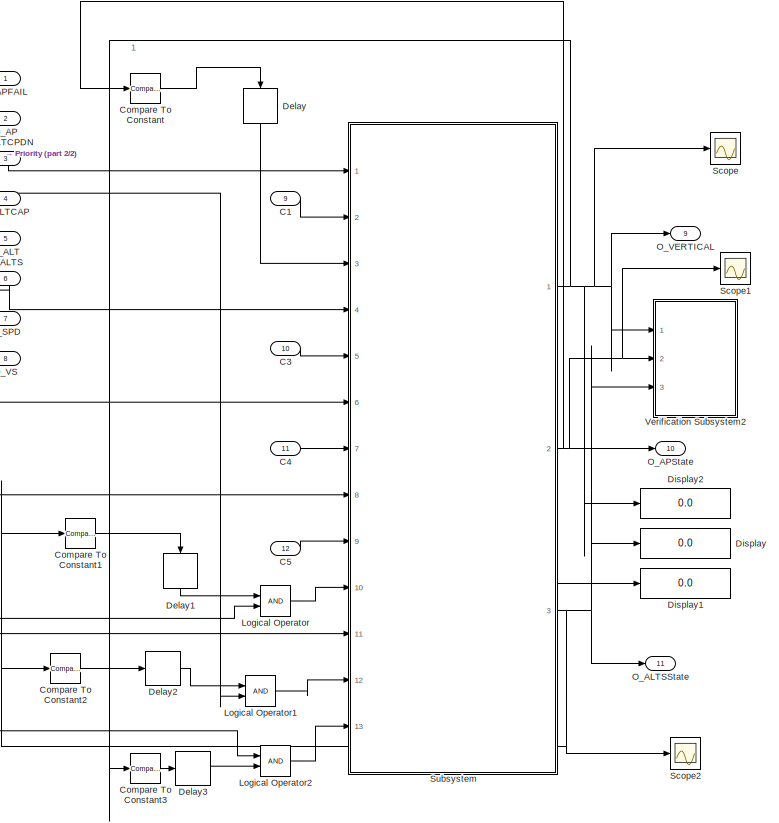
[diagram: Subsystem1 - part 1/2, right side, full height]
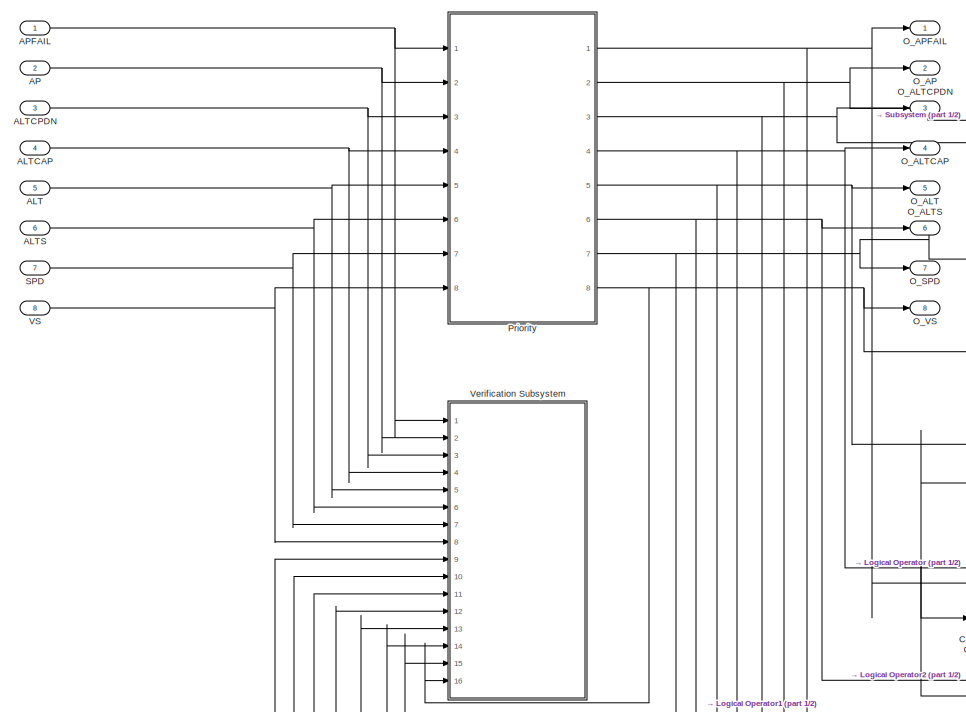
[diagram: Subsystem1 - part 2/2, middle left region]
BLOCK [SubSystem] Subsystem1
  FunctionWithSeparateData = off
  MaskHideContents = off
  MinAlgLoopOccurrences = off
  Opaque = off
  Ports = [12, 11]
  PropExecContextOutsideSubsystem = off
  RTWSystemCode = Auto
  RequestExecContextInheritance = off
BLOCK [Inport] Subsystem1/ALT
  IconDisplay = Port number
  Port = 5
BLOCK [Inport] Subsystem1/ALTCAP
  IconDisplay = Port number
  Port = 4
BLOCK [Inport] Subsystem1/ALTCPDN
  IconDisplay = Port number
  Port = 3
BLOCK [Inport] Subsystem1/ALTS
  IconDisplay = Port number
  Port = 6
BLOCK [Inport] Subsystem1/AP
  IconDisplay = Port number
  Port = 2
BLOCK [Inport] Subsystem1/APFAIL
  IconDisplay = Port number
BLOCK [Inport] Subsystem1/C1
  IconDisplay = Port number
  Port = 9
BLOCK [Inport] Subsystem1/C3
  IconDisplay = Port number
  Port = 10
BLOCK [Inport] Subsystem1/C4
  IconDisplay = Port number
  Port = 11
BLOCK [Inport] Subsystem1/C5
  IconDisplay = Port number
  Port = 12
BLOCK [Reference] Subsystem1/Compare To Constant  REF=simulink/Logic and Bit
Operations/Compare
To Constant
  OutDataTypeStr = boolean
  Ports = [1, 1]
  SourceBlock = simulink/Logic and Bit\nOperations/Compare\nTo Constant
  SourceType = Compare To Constant
  ZeroCross = on
  const = 1
  relop = ==
BLOCK [Reference] Subsystem1/Compare To Constant1  REF=simulink/Logic and Bit
Operations/Compare
To Constant
  OutDataTypeStr = boolean
  Ports = [1, 1]
  SourceBlock = simulink/Logic and Bit\nOperations/Compare\nTo Constant
  SourceType = Compare To Constant
  ZeroCross = on
  const = 2
  relop = ==
BLOCK [Reference] Subsystem1/Compare To Constant2  REF=simulink/Logic and Bit
Operations/Compare
To Constant
  OutDataTypeStr = boolean
  Ports = [1, 1]
  SourceBlock = simulink/Logic and Bit\nOperations/Compare\nTo Constant
  SourceType = Compare To Constant
  ZeroCross = on
  const = 3
  relop = ==
BLOCK [Reference] Subsystem1/Compare To Constant3  REF=simulink/Logic and Bit
Operations/Compare
To Constant
  OutDataTypeStr = boolean
  Ports = [1, 1]
  SourceBlock = simulink/Logic and Bit\nOperations/Compare\nTo Constant
  SourceType = Compare To Constant
  ZeroCross = on
  const = 5
  relop = ~=
BLOCK [Delay] Subsystem1/Delay
  DelayLength = 1
  InitialCondition = IC_APON
  InputPortMap = u0
  Ports = [1, 1]
BLOCK [Delay] Subsystem1/Delay1
  DelayLength = 1
  InitialCondition = IC_ALTSARM
  InputPortMap = u0
  Ports = [1, 1]
BLOCK [Delay] Subsystem1/Delay2
  DelayLength = 1
  InitialCondition = IC_ALTSCAP
  InputPortMap = u0
  Ports = [1, 1]
BLOCK [Delay] Subsystem1/Delay3
  DelayLength = 1
  InitialCondition = IC_ALTNOTHOLD
  InputPortMap = u0
  Ports = [1, 1]
BLOCK [Display] Subsystem1/Display
  Decimation = 1
  Ports = [1]
BLOCK [Display] Subsystem1/Display1
  Decimation = 1
  Ports = [1]
BLOCK [Display] Subsystem1/Display2
  Decimation = 1
  Ports = [1]
BLOCK [Logic] Subsystem1/Logical Operator
  AllPortsSameDT = off
  OutDataTypeStr = boolean
  Ports = [2, 1]
BLOCK [Logic] Subsystem1/Logical Operator1
  AllPortsSameDT = off
  OutDataTypeStr = boolean
  Ports = [2, 1]
BLOCK [Logic] Subsystem1/Logical Operator2
  AllPortsSameDT = off
  OutDataTypeStr = boolean
  Ports = [2, 1]
BLOCK [Outport] Subsystem1/O_ALT
  IconDisplay = Port number
  Port = 5
BLOCK [Outport] Subsystem1/O_ALTCAP
  IconDisplay = Port number
  Port = 4
BLOCK [Outport] Subsystem1/O_ALTCPDN
  IconDisplay = Port number
  Port = 3
BLOCK [Outport] Subsystem1/O_ALTS
  IconDisplay = Port number
  Port = 6
BLOCK [Outport] Subsystem1/O_ALTSState
  IconDisplay = Port number
  Port = 11
BLOCK [Outport] Subsystem1/O_AP
  IconDisplay = Port number
  Port = 2
BLOCK [Outport] Subsystem1/O_APFAIL
  IconDisplay = Port number
BLOCK [Outport] Subsystem1/O_APState
  IconDisplay = Port number
  Port = 10
BLOCK [Outport] Subsystem1/O_SPD
  IconDisplay = Port number
  Port = 7
BLOCK [Outport] Subsystem1/O_VERTICAL
  IconDisplay = Port number
  Port = 9
BLOCK [Outport] Subsystem1/O_VS
  IconDisplay = Port number
  Port = 8
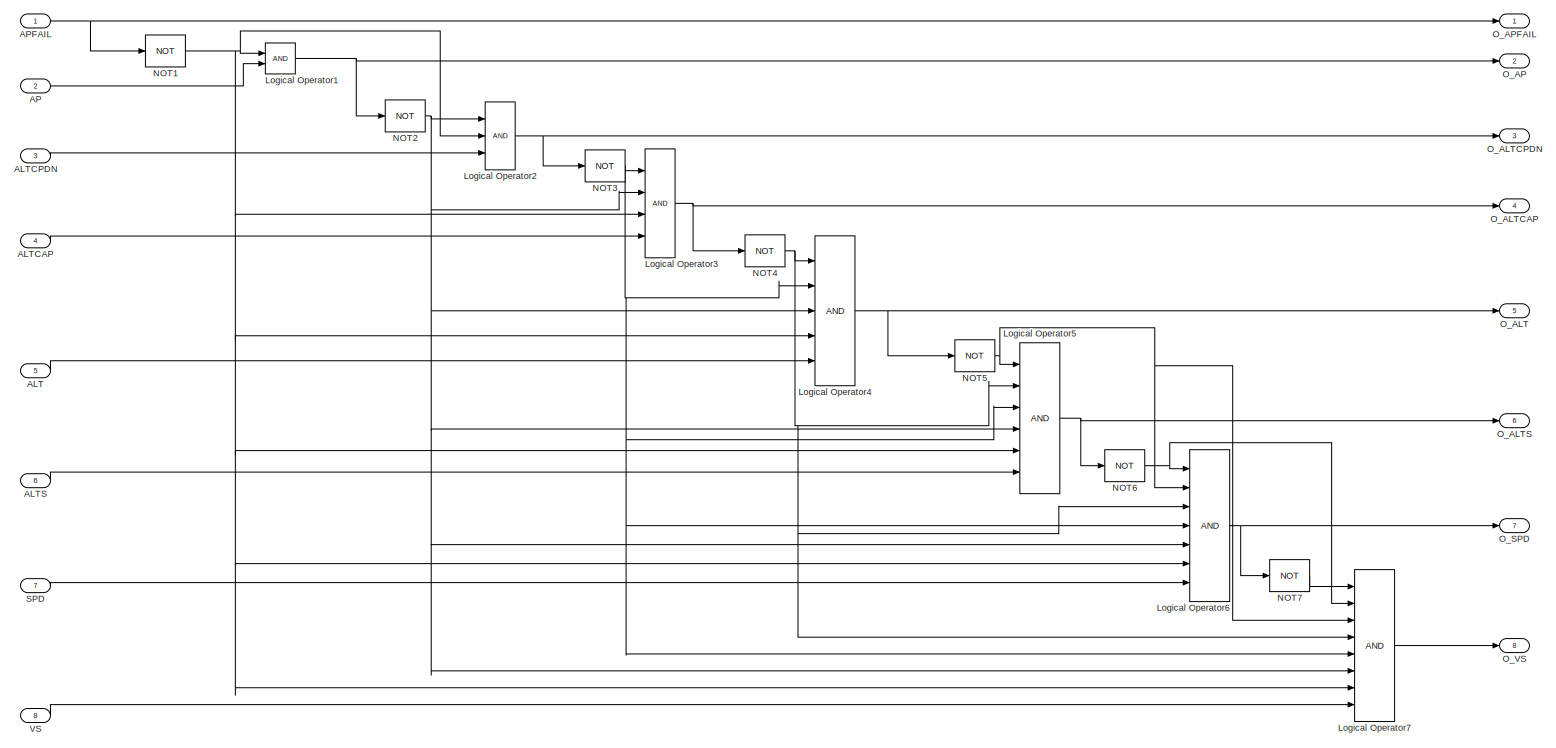
[diagram: Subsystem1/Priority - part 1/1, most of the canvas]
BLOCK [SubSystem] Subsystem1/Priority
  FunctionWithSeparateData = off
  MaskHideContents = off
  MinAlgLoopOccurrences = off
  Opaque = off
  Ports = [8, 8]
  PropExecContextOutsideSubsystem = off
  RTWSystemCode = Auto
  RequestExecContextInheritance = off
BLOCK [Inport] Subsystem1/Priority/ALT
  IconDisplay = Port number
  Port = 5
BLOCK [Inport] Subsystem1/Priority/ALTCAP
  IconDisplay = Port number
  Port = 4
BLOCK [Inport] Subsystem1/Priority/ALTCPDN
  IconDisplay = Port number
  Port = 3
BLOCK [Inport] Subsystem1/Priority/ALTS
  IconDisplay = Port number
  Port = 6
BLOCK [Inport] Subsystem1/Priority/AP
  IconDisplay = Port number
  Port = 2
BLOCK [Inport] Subsystem1/Priority/APFAIL
  IconDisplay = Port number
BLOCK [Logic] Subsystem1/Priority/Logical Operator1
  AllPortsSameDT = off
  OutDataTypeStr = boolean
  Ports = [2, 1]
BLOCK [Logic] Subsystem1/Priority/Logical Operator2
  AllPortsSameDT = off
  Inputs = 3
  OutDataTypeStr = boolean
  Ports = [3, 1]
BLOCK [Logic] Subsystem1/Priority/Logical Operator3
  AllPortsSameDT = off
  Inputs = 4
  OutDataTypeStr = boolean
  Ports = [4, 1]
BLOCK [Logic] Subsystem1/Priority/Logical Operator4
  AllPortsSameDT = off
  Inputs = 5
  OutDataTypeStr = boolean
  Ports = [5, 1]
BLOCK [Logic] Subsystem1/Priority/Logical Operator5
  AllPortsSameDT = off
  Inputs = 6
  OutDataTypeStr = boolean
  Ports = [6, 1]
BLOCK [Logic] Subsystem1/Priority/Logical Operator6
  AllPortsSameDT = off
  Inputs = 7
  OutDataTypeStr = boolean
  Ports = [7, 1]
BLOCK [Logic] Subsystem1/Priority/Logical Operator7
  AllPortsSameDT = off
  Inputs = 8
  OutDataTypeStr = boolean
  Ports = [8, 1]
BLOCK [Logic] Subsystem1/Priority/NOT1
  AllPortsSameDT = off
  Operator = NOT
  OutDataTypeStr = boolean
  Ports = [1, 1]
BLOCK [Logic] Subsystem1/Priority/NOT2
  AllPortsSameDT = off
  Operator = NOT
  OutDataTypeStr = boolean
  Ports = [1, 1]
BLOCK [Logic] Subsystem1/Priority/NOT3
  AllPortsSameDT = off
  Operator = NOT
  OutDataTypeStr = boolean
  Ports = [1, 1]
BLOCK [Logic] Subsystem1/Priority/NOT4
  AllPortsSameDT = off
  Operator = NOT
  OutDataTypeStr = boolean
  Ports = [1, 1]
BLOCK [Logic] Subsystem1/Priority/NOT5
  AllPortsSameDT = off
  Operator = NOT
  OutDataTypeStr = boolean
  Ports = [1, 1]
BLOCK [Logic] Subsystem1/Priority/NOT6
  AllPortsSameDT = off
  Operator = NOT
  OutDataTypeStr = boolean
  Ports = [1, 1]
BLOCK [Logic] Subsystem1/Priority/NOT7
  AllPortsSameDT = off
  Operator = NOT
  OutDataTypeStr = boolean
  Ports = [1, 1]
BLOCK [Outport] Subsystem1/Priority/O_ALT
  IconDisplay = Port number
  Port = 5
BLOCK [Outport] Subsystem1/Priority/O_ALTCAP
  IconDisplay = Port number
  Port = 4
BLOCK [Outport] Subsystem1/Priority/O_ALTCPDN
  IconDisplay = Port number
  Port = 3
BLOCK [Outport] Subsystem1/Priority/O_ALTS
  IconDisplay = Port number
  Port = 6
BLOCK [Outport] Subsystem1/Priority/O_AP
  IconDisplay = Port number
  Port = 2
BLOCK [Outport] Subsystem1/Priority/O_APFAIL
  IconDisplay = Port number
BLOCK [Outport] Subsystem1/Priority/O_SPD
  IconDisplay = Port number
  Port = 7
BLOCK [Outport] Subsystem1/Priority/O_VS
  IconDisplay = Port number
  Port = 8
BLOCK [Inport] Subsystem1/Priority/SPD
  IconDisplay = Port number
  Port = 7
BLOCK [Inport] Subsystem1/Priority/VS
  IconDisplay = Port number
  Port = 8
BLOCK [Inport] Subsystem1/SPD
  IconDisplay = Port number
  Port = 7
BLOCK [Scope] Subsystem1/Scope
  Floating = off
  NumInputPorts = 1
  Ports = [1]
  ShowLegends = off
BLOCK [Scope] Subsystem1/Scope1
  Floating = off
  NumInputPorts = 1
  Ports = [1]
  SaveName = ScopeData1
  ShowLegends = off
BLOCK [Scope] Subsystem1/Scope2
  Floating = off
  NumInputPorts = 1
  Ports = [1]
  SaveName = ScopeData2
  ShowLegends = off
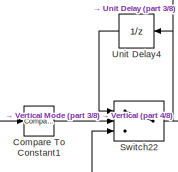
[diagram: Subsystem1/Subsystem - part 1/8, top center region]
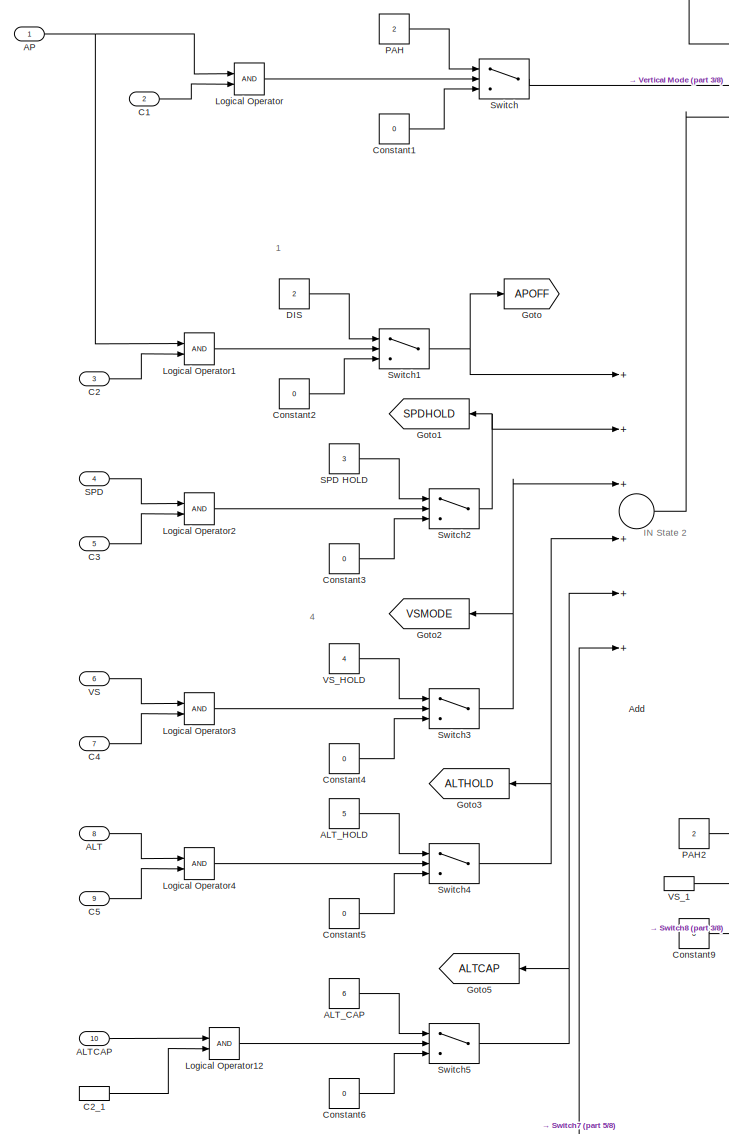
[diagram: Subsystem1/Subsystem - part 2/8, top left region]
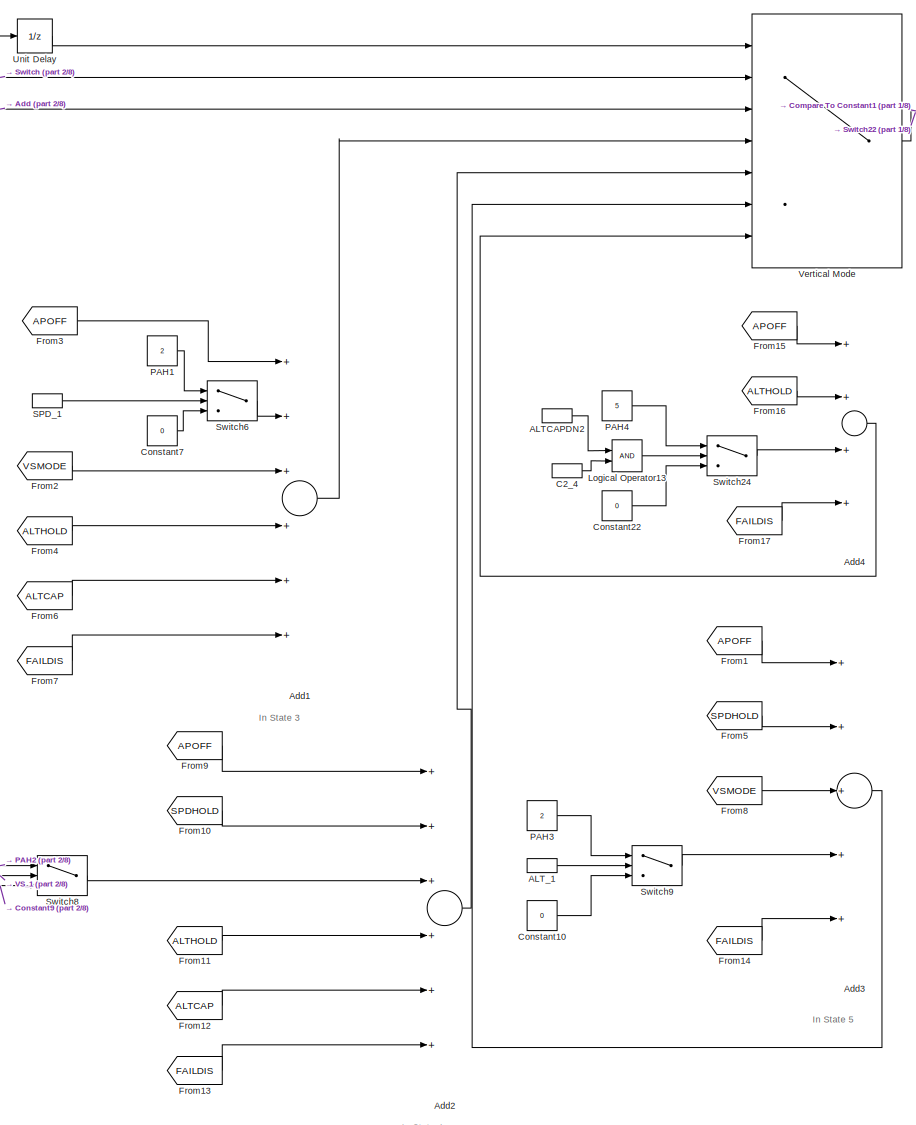
[diagram: Subsystem1/Subsystem - part 3/8, top center region]
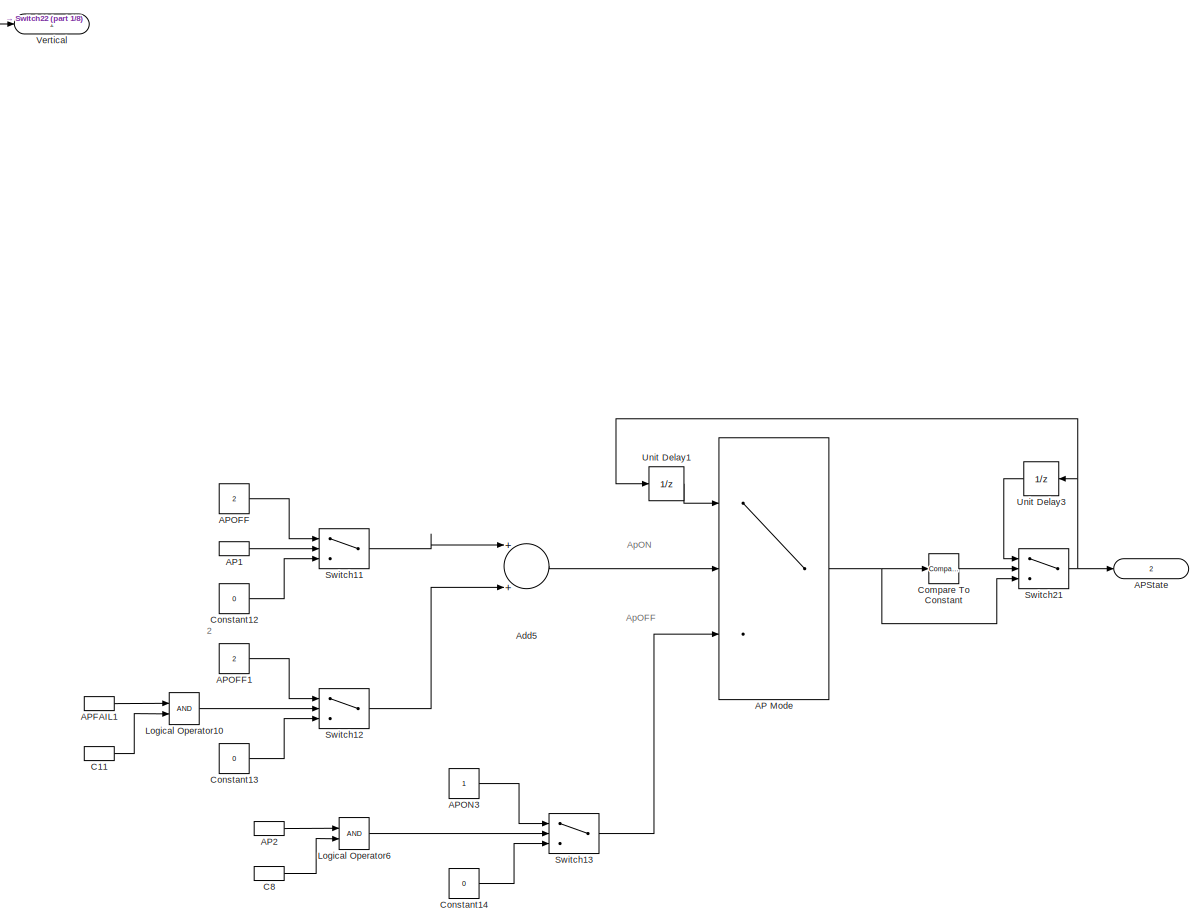
[diagram: Subsystem1/Subsystem - part 4/8, top right region]
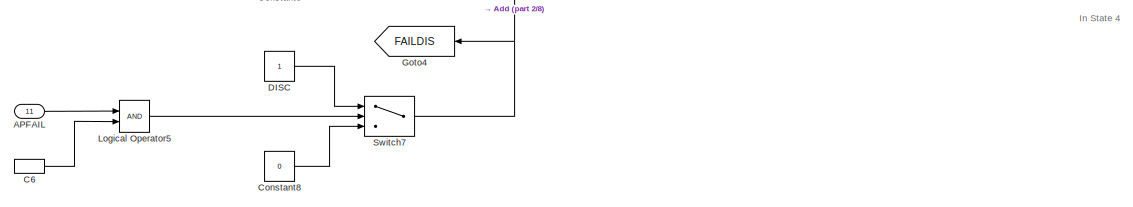
[diagram: Subsystem1/Subsystem - part 5/8, middle left region]
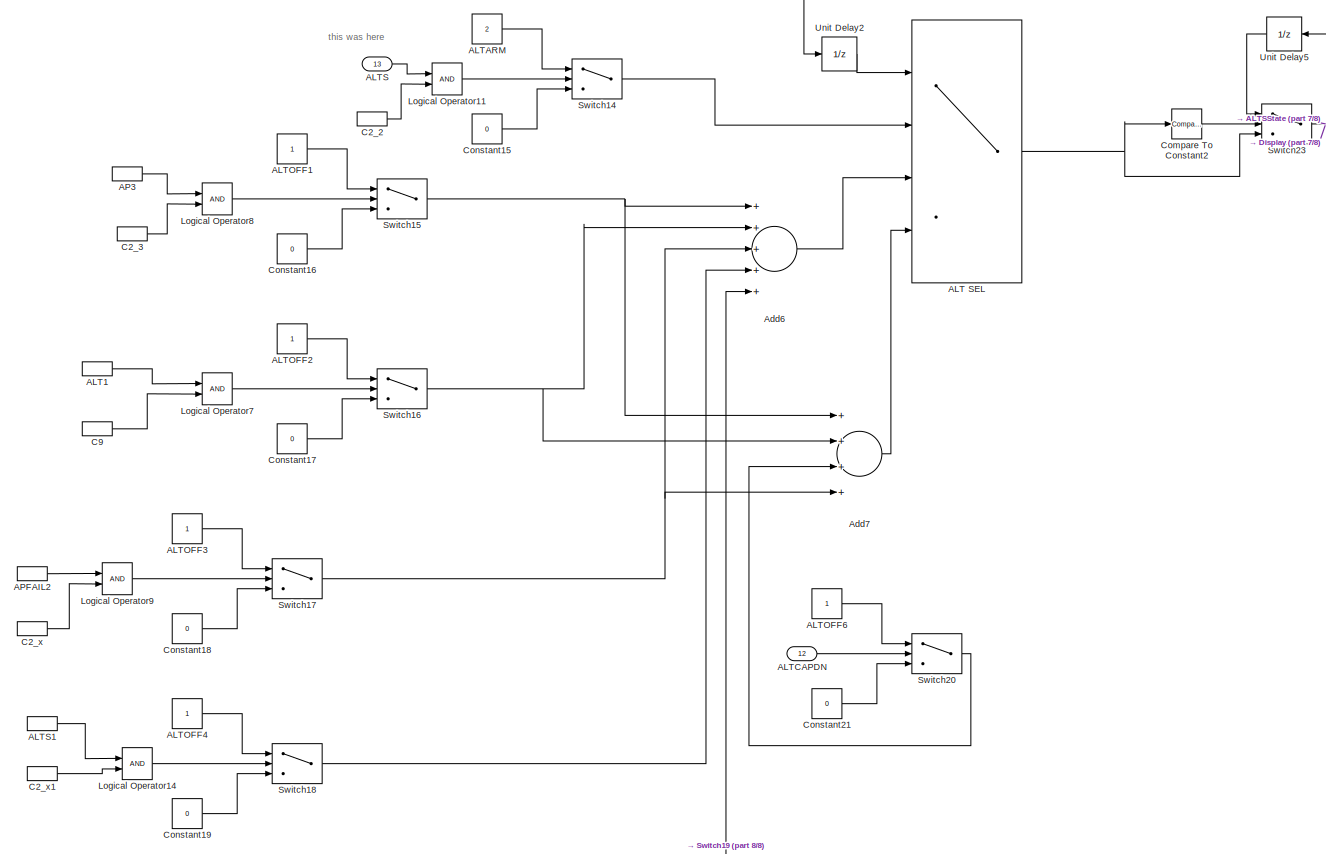
[diagram: Subsystem1/Subsystem - part 6/8, bottom left region]
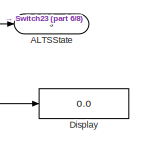
[diagram: Subsystem1/Subsystem - part 7/8, bottom center region]
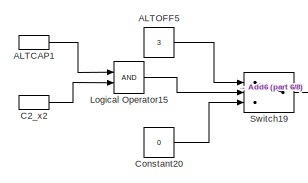
[diagram: Subsystem1/Subsystem - part 8/8, bottom left region]
BLOCK [SubSystem] Subsystem1/Subsystem
  FunctionWithSeparateData = off
  MaskHideContents = off
  MinAlgLoopOccurrences = off
  Opaque = off
  Ports = [13, 3]
  PropExecContextOutsideSubsystem = off
  RTWSystemCode = Auto
  RequestExecContextInheritance = off
BLOCK [Inport] Subsystem1/Subsystem/ALT
  IconDisplay = Port number
  Port = 8
BLOCK [MultiPortSwitch] Subsystem1/Subsystem/ALT SEL
  InputSameDT = off
  Ports = [4, 1]
  SaturateOnIntegerOverflow = off
BLOCK [InportShadow] Subsystem1/Subsystem/ALT1
  IconDisplay = Port number
  LatchByDelayingOutsideSignal = off
  LatchInputForFeedbackSignals = off
  Port = 8
BLOCK [Constant] Subsystem1/Subsystem/ALTARM
  Value = 2
BLOCK [Inport] Subsystem1/Subsystem/ALTCAP
  IconDisplay = Port number
  Port = 10
BLOCK [InportShadow] Subsystem1/Subsystem/ALTCAP1
  IconDisplay = Port number
  LatchByDelayingOutsideSignal = off
  LatchInputForFeedbackSignals = off
  Port = 10
BLOCK [Inport] Subsystem1/Subsystem/ALTCAPDN
  IconDisplay = Port number
  Port = 12
BLOCK [InportShadow] Subsystem1/Subsystem/ALTCAPDN2
  IconDisplay = Port number
  LatchByDelayingOutsideSignal = off
  LatchInputForFeedbackSignals = off
  Port = 12
BLOCK [Constant] Subsystem1/Subsystem/ALTOFF1
BLOCK [Constant] Subsystem1/Subsystem/ALTOFF2
BLOCK [Constant] Subsystem1/Subsystem/ALTOFF3
BLOCK [Constant] Subsystem1/Subsystem/ALTOFF4
BLOCK [Constant] Subsystem1/Subsystem/ALTOFF5
  Value = 3
BLOCK [Constant] Subsystem1/Subsystem/ALTOFF6
BLOCK [Inport] Subsystem1/Subsystem/ALTS
  IconDisplay = Port number
  Port = 13
BLOCK [InportShadow] Subsystem1/Subsystem/ALTS1
  IconDisplay = Port number
  LatchByDelayingOutsideSignal = off
  LatchInputForFeedbackSignals = off
  Port = 13
BLOCK [Outport] Subsystem1/Subsystem/ALTSState
  IconDisplay = Port number
  Port = 3
BLOCK [InportShadow] Subsystem1/Subsystem/ALT_1
  IconDisplay = Port number
  LatchByDelayingOutsideSignal = off
  LatchInputForFeedbackSignals = off
  Port = 8
BLOCK [Constant] Subsystem1/Subsystem/ALT_CAP
  Value = 6
BLOCK [Constant] Subsystem1/Subsystem/ALT_HOLD
  Value = 5
BLOCK [Inport] Subsystem1/Subsystem/AP
  IconDisplay = Port number
BLOCK [MultiPortSwitch] Subsystem1/Subsystem/AP Mode
  InputSameDT = off
  Inputs = 2
  Ports = [3, 1]
  SaturateOnIntegerOverflow = off
BLOCK [InportShadow] Subsystem1/Subsystem/AP1
  IconDisplay = Port number
  LatchByDelayingOutsideSignal = off
  LatchInputForFeedbackSignals = off
BLOCK [InportShadow] Subsystem1/Subsystem/AP2
  IconDisplay = Port number
  LatchByDelayingOutsideSignal = off
  LatchInputForFeedbackSignals = off
BLOCK [InportShadow] Subsystem1/Subsystem/AP3
  IconDisplay = Port number
  LatchByDelayingOutsideSignal = off
  LatchInputForFeedbackSignals = off
BLOCK [Inport] Subsystem1/Subsystem/APFAIL
  IconDisplay = Port number
  Port = 11
BLOCK [InportShadow] Subsystem1/Subsystem/APFAIL1
  IconDisplay = Port number
  LatchByDelayingOutsideSignal = off
  LatchInputForFeedbackSignals = off
  Port = 11
BLOCK [InportShadow] Subsystem1/Subsystem/APFAIL2
  IconDisplay = Port number
  LatchByDelayingOutsideSignal = off
  LatchInputForFeedbackSignals = off
  Port = 11
BLOCK [Constant] Subsystem1/Subsystem/APOFF
  Value = 2
BLOCK [Constant] Subsystem1/Subsystem/APOFF1
  Value = 2
BLOCK [Constant] Subsystem1/Subsystem/APON3
BLOCK [Outport] Subsystem1/Subsystem/APState
  IconDisplay = Port number
  Port = 2
BLOCK [Sum] Subsystem1/Subsystem/Add
  InputSameDT = off
  Inputs = ++++++
  OutDataTypeStr = Inherit: Inherit via internal rule
  Ports = [6, 1]
  SaturateOnIntegerOverflow = off
BLOCK [Sum] Subsystem1/Subsystem/Add1
  InputSameDT = off
  Inputs = ++++++
  OutDataTypeStr = Inherit: Inherit via internal rule
  Ports = [6, 1]
  SaturateOnIntegerOverflow = off
BLOCK [Sum] Subsystem1/Subsystem/Add2
  InputSameDT = off
  Inputs = ++++++
  OutDataTypeStr = Inherit: Inherit via internal rule
  Ports = [6, 1]
  SaturateOnIntegerOverflow = off
BLOCK [Sum] Subsystem1/Subsystem/Add3
  InputSameDT = off
  Inputs = +++++
  OutDataTypeStr = Inherit: Inherit via internal rule
  Ports = [5, 1]
  SaturateOnIntegerOverflow = off
BLOCK [Sum] Subsystem1/Subsystem/Add4
  InputSameDT = off
  Inputs = ++++
  OutDataTypeStr = Inherit: Inherit via internal rule
  Ports = [4, 1]
  SaturateOnIntegerOverflow = off
BLOCK [Sum] Subsystem1/Subsystem/Add5
  InputSameDT = off
  OutDataTypeStr = Inherit: Inherit via internal rule
  Ports = [2, 1]
  SaturateOnIntegerOverflow = off
BLOCK [Sum] Subsystem1/Subsystem/Add6
  InputSameDT = off
  Inputs = +++++
  OutDataTypeStr = Inherit: Inherit via internal rule
  Ports = [5, 1]
  SaturateOnIntegerOverflow = off
BLOCK [Sum] Subsystem1/Subsystem/Add7
  InputSameDT = off
  Inputs = ++++
  OutDataTypeStr = Inherit: Inherit via internal rule
  Ports = [4, 1]
  SaturateOnIntegerOverflow = off
BLOCK [Inport] Subsystem1/Subsystem/C1
  IconDisplay = Port number
  Port = 2
BLOCK [InportShadow] Subsystem1/Subsystem/C11
  IconDisplay = Port number
  LatchByDelayingOutsideSignal = off
  LatchInputForFeedbackSignals = off
  Port = 3
BLOCK [Inport] Subsystem1/Subsystem/C2
  IconDisplay = Port number
  Port = 3
BLOCK [InportShadow] Subsystem1/Subsystem/C2_1
  IconDisplay = Port number
  LatchByDelayingOutsideSignal = off
  LatchInputForFeedbackSignals = off
  Port = 3
BLOCK [InportShadow] Subsystem1/Subsystem/C2_2
  IconDisplay = Port number
  LatchByDelayingOutsideSignal = off
  LatchInputForFeedbackSignals = off
  Port = 3
BLOCK [InportShadow] Subsystem1/Subsystem/C2_3
  IconDisplay = Port number
  LatchByDelayingOutsideSignal = off
  LatchInputForFeedbackSignals = off
  Port = 3
BLOCK [InportShadow] Subsystem1/Subsystem/C2_4
  IconDisplay = Port number
  LatchByDelayingOutsideSignal = off
  LatchInputForFeedbackSignals = off
  Port = 3
BLOCK [InportShadow] Subsystem1/Subsystem/C2_x
  IconDisplay = Port number
  LatchByDelayingOutsideSignal = off
  LatchInputForFeedbackSignals = off
  Port = 3
BLOCK [InportShadow] Subsystem1/Subsystem/C2_x1
  IconDisplay = Port number
  LatchByDelayingOutsideSignal = off
  LatchInputForFeedbackSignals = off
  Port = 3
BLOCK [InportShadow] Subsystem1/Subsystem/C2_x2
  IconDisplay = Port number
  LatchByDelayingOutsideSignal = off
  LatchInputForFeedbackSignals = off
  Port = 3
BLOCK [Inport] Subsystem1/Subsystem/C3
  IconDisplay = Port number
  Port = 5
BLOCK [Inport] Subsystem1/Subsystem/C4
  IconDisplay = Port number
  Port = 7
BLOCK [Inport] Subsystem1/Subsystem/C5
  IconDisplay = Port number
  Port = 9
BLOCK [InportShadow] Subsystem1/Subsystem/C6
  IconDisplay = Port number
  LatchByDelayingOutsideSignal = off
  LatchInputForFeedbackSignals = off
  Port = 3
BLOCK [InportShadow] Subsystem1/Subsystem/C8
  IconDisplay = Port number
  LatchByDelayingOutsideSignal = off
  LatchInputForFeedbackSignals = off
  Port = 2
BLOCK [InportShadow] Subsystem1/Subsystem/C9
  IconDisplay = Port number
  LatchByDelayingOutsideSignal = off
  LatchInputForFeedbackSignals = off
  Port = 9
BLOCK [Reference] Subsystem1/Subsystem/Compare To Constant  REF=simulink/Logic and Bit
Operations/Compare
To Constant
  OutDataTypeStr = boolean
  Ports = [1, 1]
  SourceBlock = simulink/Logic and Bit\nOperations/Compare\nTo Constant
  SourceType = Compare To Constant
  ZeroCross = on
  const = 0
  relop = ==
BLOCK [Reference] Subsystem1/Subsystem/Compare To Constant1  REF=simulink/Logic and Bit
Operations/Compare
To Constant
  OutDataTypeStr = boolean
  Ports = [1, 1]
  SourceBlock = simulink/Logic and Bit\nOperations/Compare\nTo Constant
  SourceType = Compare To Constant
  ZeroCross = on
  const = 0
  relop = ==
BLOCK [Reference] Subsystem1/Subsystem/Compare To Constant2  REF=simulink/Logic and Bit
Operations/Compare
To Constant
  OutDataTypeStr = boolean
  Ports = [1, 1]
  SourceBlock = simulink/Logic and Bit\nOperations/Compare\nTo Constant
  SourceType = Compare To Constant
  ZeroCross = on
  const = 0
  relop = ==
BLOCK [Constant] Subsystem1/Subsystem/Constant1
  Value = 0
BLOCK [Constant] Subsystem1/Subsystem/Constant10
  Value = 0
BLOCK [Constant] Subsystem1/Subsystem/Constant12
  Value = 0
BLOCK [Constant] Subsystem1/Subsystem/Constant13
  Value = 0
BLOCK [Constant] Subsystem1/Subsystem/Constant14
  Value = 0
BLOCK [Constant] Subsystem1/Subsystem/Constant15
  Value = 0
BLOCK [Constant] Subsystem1/Subsystem/Constant16
  Value = 0
BLOCK [Constant] Subsystem1/Subsystem/Constant17
  Value = 0
BLOCK [Constant] Subsystem1/Subsystem/Constant18
  Value = 0
BLOCK [Constant] Subsystem1/Subsystem/Constant19
  Value = 0
BLOCK [Constant] Subsystem1/Subsystem/Constant2
  Value = 0
BLOCK [Constant] Subsystem1/Subsystem/Constant20
  Value = 0
BLOCK [Constant] Subsystem1/Subsystem/Constant21
  Value = 0
BLOCK [Constant] Subsystem1/Subsystem/Constant22
  Value = 0
BLOCK [Constant] Subsystem1/Subsystem/Constant3
  Value = 0
BLOCK [Constant] Subsystem1/Subsystem/Constant4
  Value = 0
BLOCK [Constant] Subsystem1/Subsystem/Constant5
  Value = 0
BLOCK [Constant] Subsystem1/Subsystem/Constant6
  Value = 0
BLOCK [Constant] Subsystem1/Subsystem/Constant7
  Value = 0
BLOCK [Constant] Subsystem1/Subsystem/Constant8
  Value = 0
BLOCK [Constant] Subsystem1/Subsystem/Constant9
  Value = 0
BLOCK [Constant] Subsystem1/Subsystem/DIS
  Value = 2
BLOCK [Constant] Subsystem1/Subsystem/DISC
BLOCK [Display] Subsystem1/Subsystem/Display
  Decimation = 1
  Ports = [1]
BLOCK [From] Subsystem1/Subsystem/From1
  GotoTag = APOFF
BLOCK [From] Subsystem1/Subsystem/From10
  GotoTag = SPDHOLD
BLOCK [From] Subsystem1/Subsystem/From11
  GotoTag = ALTHOLD
BLOCK [From] Subsystem1/Subsystem/From12
  GotoTag = ALTCAP
BLOCK [From] Subsystem1/Subsystem/From13
  GotoTag = FAILDIS
BLOCK [From] Subsystem1/Subsystem/From14
  GotoTag = FAILDIS
BLOCK [From] Subsystem1/Subsystem/From15
  GotoTag = APOFF
BLOCK [From] Subsystem1/Subsystem/From16
  GotoTag = ALTHOLD
BLOCK [From] Subsystem1/Subsystem/From17
  GotoTag = FAILDIS
BLOCK [From] Subsystem1/Subsystem/From2
  GotoTag = VSMODE
BLOCK [From] Subsystem1/Subsystem/From3
  GotoTag = APOFF
BLOCK [From] Subsystem1/Subsystem/From4
  GotoTag = ALTHOLD
BLOCK [From] Subsystem1/Subsystem/From5
  GotoTag = SPDHOLD
BLOCK [From] Subsystem1/Subsystem/From6
  GotoTag = ALTCAP
BLOCK [From] Subsystem1/Subsystem/From7
  GotoTag = FAILDIS
BLOCK [From] Subsystem1/Subsystem/From8
  GotoTag = VSMODE
BLOCK [From] Subsystem1/Subsystem/From9
  GotoTag = APOFF
BLOCK [Goto] Subsystem1/Subsystem/Goto
  GotoTag = APOFF
BLOCK [Goto] Subsystem1/Subsystem/Goto1
  GotoTag = SPDHOLD
BLOCK [Goto] Subsystem1/Subsystem/Goto2
  GotoTag = VSMODE
BLOCK [Goto] Subsystem1/Subsystem/Goto3
  GotoTag = ALTHOLD
BLOCK [Goto] Subsystem1/Subsystem/Goto4
  GotoTag = FAILDIS
BLOCK [Goto] Subsystem1/Subsystem/Goto5
  GotoTag = ALTCAP
BLOCK [Logic] Subsystem1/Subsystem/Logical Operator
  AllPortsSameDT = off
  IconShape = distinctive
  OutDataTypeStr = boolean
  Ports = [2, 1]
BLOCK [Logic] Subsystem1/Subsystem/Logical Operator1
  AllPortsSameDT = off
  IconShape = distinctive
  OutDataTypeStr = boolean
  Ports = [2, 1]
BLOCK [Logic] Subsystem1/Subsystem/Logical Operator10
  AllPortsSameDT = off
  IconShape = distinctive
  OutDataTypeStr = boolean
  Ports = [2, 1]
BLOCK [Logic] Subsystem1/Subsystem/Logical Operator11
  AllPortsSameDT = off
  IconShape = distinctive
  OutDataTypeStr = boolean
  Ports = [2, 1]
BLOCK [Logic] Subsystem1/Subsystem/Logical Operator12
  AllPortsSameDT = off
  IconShape = distinctive
  OutDataTypeStr = boolean
  Ports = [2, 1]
BLOCK [Logic] Subsystem1/Subsystem/Logical Operator13
  AllPortsSameDT = off
  IconShape = distinctive
  OutDataTypeStr = boolean
  Ports = [2, 1]
BLOCK [Logic] Subsystem1/Subsystem/Logical Operator14
  AllPortsSameDT = off
  IconShape = distinctive
  OutDataTypeStr = boolean
  Ports = [2, 1]
BLOCK [Logic] Subsystem1/Subsystem/Logical Operator15
  AllPortsSameDT = off
  IconShape = distinctive
  OutDataTypeStr = boolean
  Ports = [2, 1]
BLOCK [Logic] Subsystem1/Subsystem/Logical Operator2
  AllPortsSameDT = off
  IconShape = distinctive
  OutDataTypeStr = boolean
  Ports = [2, 1]
BLOCK [Logic] Subsystem1/Subsystem/Logical Operator3
  AllPortsSameDT = off
  IconShape = distinctive
  OutDataTypeStr = boolean
  Ports = [2, 1]
BLOCK [Logic] Subsystem1/Subsystem/Logical Operator4
  AllPortsSameDT = off
  IconShape = distinctive
  OutDataTypeStr = boolean
  Ports = [2, 1]
BLOCK [Logic] Subsystem1/Subsystem/Logical Operator5
  AllPortsSameDT = off
  IconShape = distinctive
  OutDataTypeStr = boolean
  Ports = [2, 1]
BLOCK [Logic] Subsystem1/Subsystem/Logical Operator6
  AllPortsSameDT = off
  IconShape = distinctive
  OutDataTypeStr = boolean
  Ports = [2, 1]
BLOCK [Logic] Subsystem1/Subsystem/Logical Operator7
  AllPortsSameDT = off
  IconShape = distinctive
  OutDataTypeStr = boolean
  Ports = [2, 1]
BLOCK [Logic] Subsystem1/Subsystem/Logical Operator8
  AllPortsSameDT = off
  IconShape = distinctive
  OutDataTypeStr = boolean
  Ports = [2, 1]
BLOCK [Logic] Subsystem1/Subsystem/Logical Operator9
  AllPortsSameDT = off
  IconShape = distinctive
  OutDataTypeStr = boolean
  Ports = [2, 1]
BLOCK [Constant] Subsystem1/Subsystem/PAH
  Value = 2
BLOCK [Constant] Subsystem1/Subsystem/PAH1
  Value = 2
BLOCK [Constant] Subsystem1/Subsystem/PAH2
  Value = 2
BLOCK [Constant] Subsystem1/Subsystem/PAH3
  Value = 2
BLOCK [Constant] Subsystem1/Subsystem/PAH4
  Value = 5
BLOCK [Inport] Subsystem1/Subsystem/SPD
  IconDisplay = Port number
  Port = 4
BLOCK [Constant] Subsystem1/Subsystem/SPD HOLD
  Value = 3
BLOCK [InportShadow] Subsystem1/Subsystem/SPD_1
  IconDisplay = Port number
  LatchByDelayingOutsideSignal = off
  LatchInputForFeedbackSignals = off
  Port = 4
BLOCK [Switch] Subsystem1/Subsystem/Switch
  Criteria = u2 ~= 0
  InputSameDT = off
  SaturateOnIntegerOverflow = off
BLOCK [Switch] Subsystem1/Subsystem/Switch1
  Criteria = u2 ~= 0
  InputSameDT = off
  SaturateOnIntegerOverflow = off
BLOCK [Switch] Subsystem1/Subsystem/Switch11
  Criteria = u2 ~= 0
  InputSameDT = off
  SaturateOnIntegerOverflow = off
BLOCK [Switch] Subsystem1/Subsystem/Switch12
  Criteria = u2 ~= 0
  InputSameDT = off
  SaturateOnIntegerOverflow = off
BLOCK [Switch] Subsystem1/Subsystem/Switch13
  Criteria = u2 ~= 0
  InputSameDT = off
  SaturateOnIntegerOverflow = off
BLOCK [Switch] Subsystem1/Subsystem/Switch14
  Criteria = u2 ~= 0
  InputSameDT = off
  SaturateOnIntegerOverflow = off
BLOCK [Switch] Subsystem1/Subsystem/Switch15
  Criteria = u2 ~= 0
  InputSameDT = off
  SaturateOnIntegerOverflow = off
BLOCK [Switch] Subsystem1/Subsystem/Switch16
  Criteria = u2 ~= 0
  InputSameDT = off
  SaturateOnIntegerOverflow = off
BLOCK [Switch] Subsystem1/Subsystem/Switch17
  Criteria = u2 ~= 0
  InputSameDT = off
  SaturateOnIntegerOverflow = off
BLOCK [Switch] Subsystem1/Subsystem/Switch18
  Criteria = u2 ~= 0
  InputSameDT = off
  SaturateOnIntegerOverflow = off
BLOCK [Switch] Subsystem1/Subsystem/Switch19
  Criteria = u2 ~= 0
  InputSameDT = off
  SaturateOnIntegerOverflow = off
BLOCK [Switch] Subsystem1/Subsystem/Switch2
  Criteria = u2 ~= 0
  InputSameDT = off
  SaturateOnIntegerOverflow = off
BLOCK [Switch] Subsystem1/Subsystem/Switch20
  Criteria = u2 ~= 0
  InputSameDT = off
  SaturateOnIntegerOverflow = off
BLOCK [Switch] Subsystem1/Subsystem/Switch21
  Criteria = u2 ~= 0
  InputSameDT = off
  SaturateOnIntegerOverflow = off
BLOCK [Switch] Subsystem1/Subsystem/Switch22
  Criteria = u2 ~= 0
  InputSameDT = off
  SaturateOnIntegerOverflow = off
BLOCK [Switch] Subsystem1/Subsystem/Switch23
  Criteria = u2 ~= 0
  InputSameDT = off
  SaturateOnIntegerOverflow = off
BLOCK [Switch] Subsystem1/Subsystem/Switch24
  Criteria = u2 ~= 0
  InputSameDT = off
  SaturateOnIntegerOverflow = off
BLOCK [Switch] Subsystem1/Subsystem/Switch3
  Criteria = u2 ~= 0
  InputSameDT = off
  SaturateOnIntegerOverflow = off
BLOCK [Switch] Subsystem1/Subsystem/Switch4
  Criteria = u2 ~= 0
  InputSameDT = off
  SaturateOnIntegerOverflow = off
BLOCK [Switch] Subsystem1/Subsystem/Switch5
  Criteria = u2 ~= 0
  InputSameDT = off
  SaturateOnIntegerOverflow = off
BLOCK [Switch] Subsystem1/Subsystem/Switch6
  Criteria = u2 ~= 0
  InputSameDT = off
  SaturateOnIntegerOverflow = off
BLOCK [Switch] Subsystem1/Subsystem/Switch7
  Criteria = u2 ~= 0
  InputSameDT = off
  SaturateOnIntegerOverflow = off
BLOCK [Switch] Subsystem1/Subsystem/Switch8
  Criteria = u2 ~= 0
  InputSameDT = off
  SaturateOnIntegerOverflow = off
BLOCK [Switch] Subsystem1/Subsystem/Switch9
  Criteria = u2 ~= 0
  InputSameDT = off
  SaturateOnIntegerOverflow = off
BLOCK [UnitDelay] Subsystem1/Subsystem/Unit Delay
  InitialCondition = IC_VERT
  InputProcessing = Elements as channels (sample based)
  SampleTime = -1
BLOCK [UnitDelay] Subsystem1/Subsystem/Unit Delay1
  InitialCondition = IC_AP
  InputProcessing = Elements as channels (sample based)
  SampleTime = -1
BLOCK [UnitDelay] Subsystem1/Subsystem/Unit Delay2
  InitialCondition = IC_ALTS
  InputProcessing = Elements as channels (sample based)
  SampleTime = -1
BLOCK [UnitDelay] Subsystem1/Subsystem/Unit Delay3
  InitialCondition = IC_AP
  InputProcessing = Elements as channels (sample based)
  SampleTime = -1
BLOCK [UnitDelay] Subsystem1/Subsystem/Unit Delay4
  InitialCondition = IC_VERT
  InputProcessing = Elements as channels (sample based)
  SampleTime = -1
BLOCK [UnitDelay] Subsystem1/Subsystem/Unit Delay5
  InitialCondition = IC_ALTS
  InputProcessing = Elements as channels (sample based)
  SampleTime = -1
BLOCK [Inport] Subsystem1/Subsystem/VS
  IconDisplay = Port number
  Port = 6
BLOCK [InportShadow] Subsystem1/Subsystem/VS_1
  IconDisplay = Port number
  LatchByDelayingOutsideSignal = off
  LatchInputForFeedbackSignals = off
  Port = 6
BLOCK [Constant] Subsystem1/Subsystem/VS_HOLD
  Value = 4
BLOCK [Outport] Subsystem1/Subsystem/Vertical
  IconDisplay = Port number
BLOCK [MultiPortSwitch] Subsystem1/Subsystem/Vertical Mode
  InputSameDT = off
  Inputs = 6
  Ports = [7, 1]
  SaturateOnIntegerOverflow = off
BLOCK [Inport] Subsystem1/VS
  IconDisplay = Port number
  Port = 8
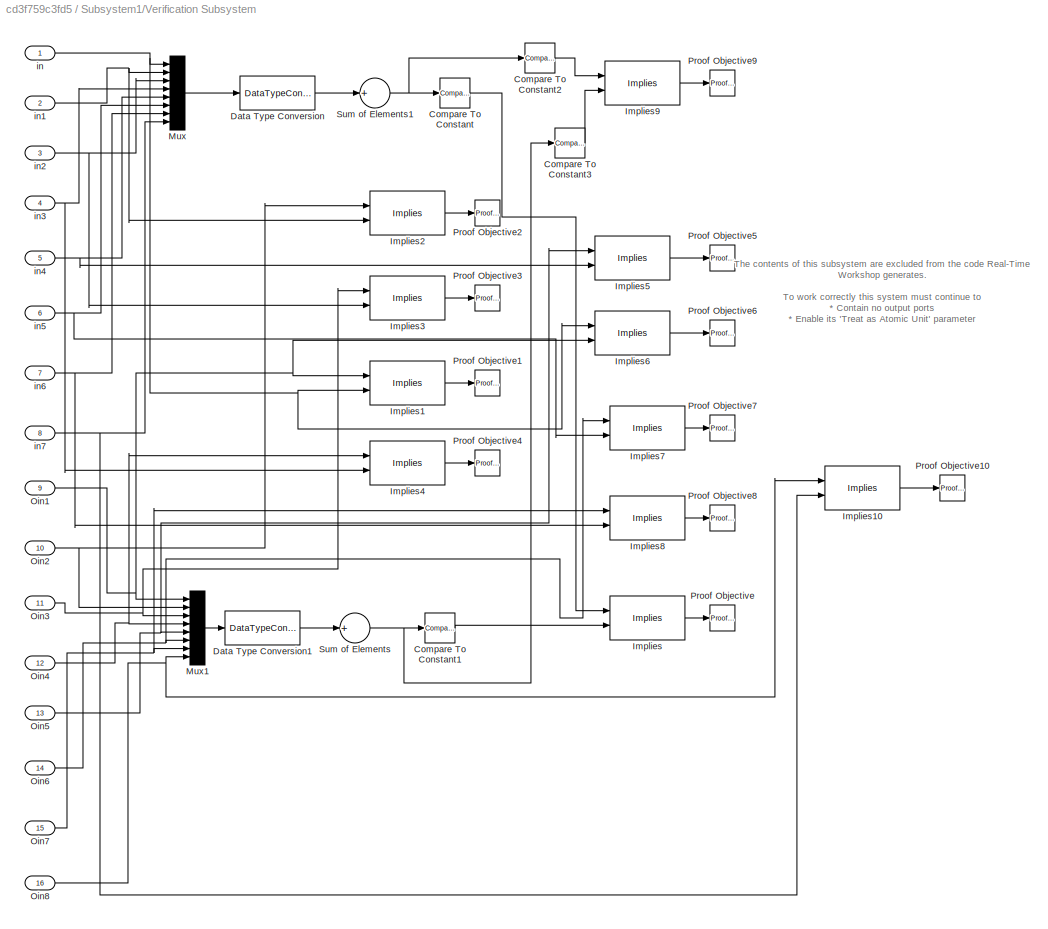
BLOCK [SubSystem] Subsystem1/Verification Subsystem
  CopyFcn = sldvsubsys('copy');
  DisableCoverage = on
  FunctionWithSeparateData = off
  LoadFcn = sldvsubsys('check')
  MaskHideContents = off
  MinAlgLoopOccurrences = off
  Opaque = off
  OpenFcn = open_system(gcb,'force');
  Ports = [16]
  PreSaveFcn = set_param(gcb,'SimViewingDevice','on');\nsldvsubsys('check');
  PropExecContextOutsideSubsystem = off
  RTWSystemCode = Auto
  RequestExecContextInheritance = off
  SimViewingDevice = on
  Tag = VerificationSubsystem
  TreatAsAtomicUnit = on
BLOCK [Reference] Subsystem1/Verification Subsystem/Compare To Constant  REF=simulink/Logic and Bit
Operations/Compare
To Constant
  OutDataTypeStr = boolean
  Ports = [1, 1]
  SourceBlock = simulink/Logic and Bit\nOperations/Compare\nTo Constant
  SourceType = Compare To Constant
  ZeroCross = on
  const = 1
  relop = >=
BLOCK [Reference] Subsystem1/Verification Subsystem/Compare To Constant1  REF=simulink/Logic and Bit
Operations/Compare
To Constant
  OutDataTypeStr = boolean
  Ports = [1, 1]
  SourceBlock = simulink/Logic and Bit\nOperations/Compare\nTo Constant
  SourceType = Compare To Constant
  ZeroCross = on
  const = 1
  relop = ==
BLOCK [Reference] Subsystem1/Verification Subsystem/Compare To Constant2  REF=simulink/Logic and Bit
Operations/Compare
To Constant
  OutDataTypeStr = boolean
  Ports = [1, 1]
  SourceBlock = simulink/Logic and Bit\nOperations/Compare\nTo Constant
  SourceType = Compare To Constant
  ZeroCross = on
  const = 0
  relop = ==
BLOCK [Reference] Subsystem1/Verification Subsystem/Compare To Constant3  REF=simulink/Logic and Bit
Operations/Compare
To Constant
  OutDataTypeStr = boolean
  Ports = [1, 1]
  SourceBlock = simulink/Logic and Bit\nOperations/Compare\nTo Constant
  SourceType = Compare To Constant
  ZeroCross = on
  const = 0
  relop = ==
BLOCK [DataTypeConversion] Subsystem1/Verification Subsystem/Data Type Conversion
  OutDataTypeStr = uint16
  RndMeth = Floor
  SaturateOnIntegerOverflow = off
BLOCK [DataTypeConversion] Subsystem1/Verification Subsystem/Data Type Conversion1
  OutDataTypeStr = uint16
  RndMeth = Floor
  SaturateOnIntegerOverflow = off
BLOCK [Reference] Subsystem1/Verification Subsystem/Implies  REF=sldvlib/Verification Utilities/Implies
  Ports = [2, 1]
  SourceBlock = sldvlib/Verification Utilities/Implies
  SourceType = Design Verifier Implies
BLOCK [Reference] Subsystem1/Verification Subsystem/Implies1  REF=sldvlib/Verification Utilities/Implies
  Ports = [2, 1]
  SourceBlock = sldvlib/Verification Utilities/Implies
  SourceType = Design Verifier Implies
BLOCK [Reference] Subsystem1/Verification Subsystem/Implies10  REF=sldvlib/Verification Utilities/Implies
  Ports = [2, 1]
  SourceBlock = sldvlib/Verification Utilities/Implies
  SourceType = Design Verifier Implies
BLOCK [Reference] Subsystem1/Verification Subsystem/Implies2  REF=sldvlib/Verification Utilities/Implies
  Ports = [2, 1]
  SourceBlock = sldvlib/Verification Utilities/Implies
  SourceType = Design Verifier Implies
BLOCK [Reference] Subsystem1/Verification Subsystem/Implies3  REF=sldvlib/Verification Utilities/Implies
  Ports = [2, 1]
  SourceBlock = sldvlib/Verification Utilities/Implies
  SourceType = Design Verifier Implies
BLOCK [Reference] Subsystem1/Verification Subsystem/Implies4  REF=sldvlib/Verification Utilities/Implies
  Ports = [2, 1]
  SourceBlock = sldvlib/Verification Utilities/Implies
  SourceType = Design Verifier Implies
BLOCK [Reference] Subsystem1/Verification Subsystem/Implies5  REF=sldvlib/Verification Utilities/Implies
  Ports = [2, 1]
  SourceBlock = sldvlib/Verification Utilities/Implies
  SourceType = Design Verifier Implies
BLOCK [Reference] Subsystem1/Verification Subsystem/Implies6  REF=sldvlib/Verification Utilities/Implies
  Ports = [2, 1]
  SourceBlock = sldvlib/Verification Utilities/Implies
  SourceType = Design Verifier Implies
BLOCK [Reference] Subsystem1/Verification Subsystem/Implies7  REF=sldvlib/Verification Utilities/Implies
  Ports = [2, 1]
  SourceBlock = sldvlib/Verification Utilities/Implies
  SourceType = Design Verifier Implies
BLOCK [Reference] Subsystem1/Verification Subsystem/Implies8  REF=sldvlib/Verification Utilities/Implies
  Ports = [2, 1]
  SourceBlock = sldvlib/Verification Utilities/Implies
  SourceType = Design Verifier Implies
BLOCK [Reference] Subsystem1/Verification Subsystem/Implies9  REF=sldvlib/Verification Utilities/Implies
  Ports = [2, 1]
  SourceBlock = sldvlib/Verification Utilities/Implies
  SourceType = Design Verifier Implies
BLOCK [Mux] Subsystem1/Verification Subsystem/Mux
  DisplayOption = bar
  Inputs = 8
  Ports = [8, 1]
BLOCK [Mux] Subsystem1/Verification Subsystem/Mux1
  DisplayOption = bar
  Inputs = 8
  Ports = [8, 1]
BLOCK [Inport] Subsystem1/Verification Subsystem/Oin1
  IconDisplay = Port number
  Port = 9
BLOCK [Inport] Subsystem1/Verification Subsystem/Oin2
  IconDisplay = Port number
  Port = 10
BLOCK [Inport] Subsystem1/Verification Subsystem/Oin3
  IconDisplay = Port number
  Port = 11
BLOCK [Inport] Subsystem1/Verification Subsystem/Oin4
  IconDisplay = Port number
  Port = 12
BLOCK [Inport] Subsystem1/Verification Subsystem/Oin5
  IconDisplay = Port number
  Port = 13
BLOCK [Inport] Subsystem1/Verification Subsystem/Oin6
  IconDisplay = Port number
  Port = 14
BLOCK [Inport] Subsystem1/Verification Subsystem/Oin7
  IconDisplay = Port number
  Port = 15
BLOCK [Inport] Subsystem1/Verification Subsystem/Oin8
  IconDisplay = Port number
  Port = 16
BLOCK [Reference] Subsystem1/Verification Subsystem/Proof Objective  REF=sldvlib/Objectives and Constraints/Proof Objective
  AttributesFormatString = %<intervals>
  Ports = [1]
  SourceBlock = sldvlib/Objectives and Constraints/Proof Objective
  SourceType = Design Verifier Proof Objective
  customAVTBlockType = Proof Objective
  dispValues = on
  enableStopSim = off
  enabled = on
  intervals = true
  outEnabled = off
BLOCK [Reference] Subsystem1/Verification Subsystem/Proof Objective1  REF=sldvlib/Objectives and Constraints/Proof Objective
  AttributesFormatString = %<intervals>
  Ports = [1]
  SourceBlock = sldvlib/Objectives and Constraints/Proof Objective
  SourceType = Design Verifier Proof Objective
  customAVTBlockType = Proof Objective
  dispValues = on
  enableStopSim = off
  enabled = on
  intervals = true
  outEnabled = off
BLOCK [Reference] Subsystem1/Verification Subsystem/Proof Objective10  REF=sldvlib/Objectives and Constraints/Proof Objective
  AttributesFormatString = %<intervals>
  Ports = [1]
  SourceBlock = sldvlib/Objectives and Constraints/Proof Objective
  SourceType = Design Verifier Proof Objective
  customAVTBlockType = Proof Objective
  dispValues = on
  enableStopSim = off
  enabled = on
  intervals = true
  outEnabled = off
BLOCK [Reference] Subsystem1/Verification Subsystem/Proof Objective2  REF=sldvlib/Objectives and Constraints/Proof Objective
  AttributesFormatString = %<intervals>
  Ports = [1]
  SourceBlock = sldvlib/Objectives and Constraints/Proof Objective
  SourceType = Design Verifier Proof Objective
  customAVTBlockType = Proof Objective
  dispValues = on
  enableStopSim = off
  enabled = on
  intervals = true
  outEnabled = off
BLOCK [Reference] Subsystem1/Verification Subsystem/Proof Objective3  REF=sldvlib/Objectives and Constraints/Proof Objective
  AttributesFormatString = %<intervals>
  Ports = [1]
  SourceBlock = sldvlib/Objectives and Constraints/Proof Objective
  SourceType = Design Verifier Proof Objective
  customAVTBlockType = Proof Objective
  dispValues = on
  enableStopSim = off
  enabled = on
  intervals = true
  outEnabled = off
BLOCK [Reference] Subsystem1/Verification Subsystem/Proof Objective4  REF=sldvlib/Objectives and Constraints/Proof Objective
  AttributesFormatString = %<intervals>
  Ports = [1]
  SourceBlock = sldvlib/Objectives and Constraints/Proof Objective
  SourceType = Design Verifier Proof Objective
  customAVTBlockType = Proof Objective
  dispValues = on
  enableStopSim = off
  enabled = on
  intervals = true
  outEnabled = off
BLOCK [Reference] Subsystem1/Verification Subsystem/Proof Objective5  REF=sldvlib/Objectives and Constraints/Proof Objective
  AttributesFormatString = %<intervals>
  Ports = [1]
  SourceBlock = sldvlib/Objectives and Constraints/Proof Objective
  SourceType = Design Verifier Proof Objective
  customAVTBlockType = Proof Objective
  dispValues = on
  enableStopSim = off
  enabled = on
  intervals = true
  outEnabled = off
BLOCK [Reference] Subsystem1/Verification Subsystem/Proof Objective6  REF=sldvlib/Objectives and Constraints/Proof Objective
  AttributesFormatString = %<intervals>
  Ports = [1]
  SourceBlock = sldvlib/Objectives and Constraints/Proof Objective
  SourceType = Design Verifier Proof Objective
  customAVTBlockType = Proof Objective
  dispValues = on
  enableStopSim = off
  enabled = on
  intervals = true
  outEnabled = off
BLOCK [Reference] Subsystem1/Verification Subsystem/Proof Objective7  REF=sldvlib/Objectives and Constraints/Proof Objective
  AttributesFormatString = %<intervals>
  Ports = [1]
  SourceBlock = sldvlib/Objectives and Constraints/Proof Objective
  SourceType = Design Verifier Proof Objective
  customAVTBlockType = Proof Objective
  dispValues = on
  enableStopSim = off
  enabled = on
  intervals = true
  outEnabled = off
BLOCK [Reference] Subsystem1/Verification Subsystem/Proof Objective8  REF=sldvlib/Objectives and Constraints/Proof Objective
  AttributesFormatString = %<intervals>
  Ports = [1]
  SourceBlock = sldvlib/Objectives and Constraints/Proof Objective
  SourceType = Design Verifier Proof Objective
  customAVTBlockType = Proof Objective
  dispValues = on
  enableStopSim = off
  enabled = on
  intervals = true
  outEnabled = off
BLOCK [Reference] Subsystem1/Verification Subsystem/Proof Objective9  REF=sldvlib/Objectives and Constraints/Proof Objective
  AttributesFormatString = %<intervals>
  Ports = [1]
  SourceBlock = sldvlib/Objectives and Constraints/Proof Objective
  SourceType = Design Verifier Proof Objective
  customAVTBlockType = Proof Objective
  dispValues = on
  enableStopSim = off
  enabled = on
  intervals = true
  outEnabled = off
BLOCK [Sum] Subsystem1/Verification Subsystem/Sum of Elements
  InputSameDT = off
  Inputs = +
  OutDataTypeStr = Inherit: Inherit via internal rule
  Ports = [1, 1]
  SaturateOnIntegerOverflow = off
BLOCK [Sum] Subsystem1/Verification Subsystem/Sum of Elements1
  InputSameDT = off
  Inputs = +
  OutDataTypeStr = Inherit: Inherit via internal rule
  Ports = [1, 1]
  SaturateOnIntegerOverflow = off
BLOCK [Inport] Subsystem1/Verification Subsystem/in
  IconDisplay = Port number
BLOCK [Inport] Subsystem1/Verification Subsystem/in1
  IconDisplay = Port number
  Port = 2
BLOCK [Inport] Subsystem1/Verification Subsystem/in2
  IconDisplay = Port number
  Port = 3
BLOCK [Inport] Subsystem1/Verification Subsystem/in3
  IconDisplay = Port number
  Port = 4
BLOCK [Inport] Subsystem1/Verification Subsystem/in4
  IconDisplay = Port number
  Port = 5
BLOCK [Inport] Subsystem1/Verification Subsystem/in5
  IconDisplay = Port number
  Port = 6
BLOCK [Inport] Subsystem1/Verification Subsystem/in6
  IconDisplay = Port number
  Port = 7
BLOCK [Inport] Subsystem1/Verification Subsystem/in7
  IconDisplay = Port number
  Port = 8
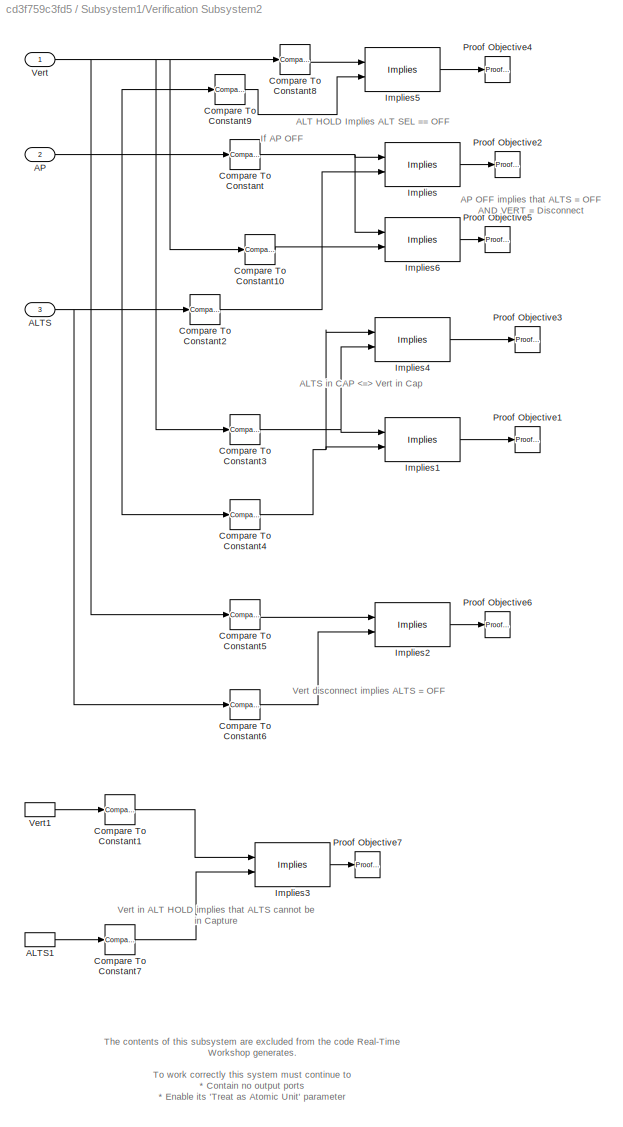
BLOCK [SubSystem] Subsystem1/Verification Subsystem2
  CopyFcn = sldvsubsys('copy');
  DisableCoverage = on
  FunctionWithSeparateData = off
  LoadFcn = sldvsubsys('check')
  MaskHideContents = off
  MinAlgLoopOccurrences = off
  Opaque = off
  OpenFcn = open_system(gcb,'force');
  Ports = [3]
  PreSaveFcn = set_param(gcb,'SimViewingDevice','on');\nsldvsubsys('check');
  PropExecContextOutsideSubsystem = off
  RTWSystemCode = Auto
  RequestExecContextInheritance = off
  SimViewingDevice = on
  Tag = VerificationSubsystem
  TreatAsAtomicUnit = on
BLOCK [Inport] Subsystem1/Verification Subsystem2/ALTS
  IconDisplay = Port number
  Port = 3
BLOCK [InportShadow] Subsystem1/Verification Subsystem2/ALTS1
  IconDisplay = Port number
  LatchByDelayingOutsideSignal = off
  LatchInputForFeedbackSignals = off
  Port = 3
BLOCK [Inport] Subsystem1/Verification Subsystem2/AP
  IconDisplay = Port number
  Port = 2
BLOCK [Reference] Subsystem1/Verification Subsystem2/Compare To Constant  REF=simulink/Logic and Bit
Operations/Compare
To Constant
  OutDataTypeStr = boolean
  Ports = [1, 1]
  SourceBlock = simulink/Logic and Bit\nOperations/Compare\nTo Constant
  SourceType = Compare To Constant
  ZeroCross = on
  const = 2
  relop = ==
BLOCK [Reference] Subsystem1/Verification Subsystem2/Compare To Constant1  REF=simulink/Logic and Bit
Operations/Compare
To Constant
  OutDataTypeStr = boolean
  Ports = [1, 1]
  SourceBlock = simulink/Logic and Bit\nOperations/Compare\nTo Constant
  SourceType = Compare To Constant
  ZeroCross = on
  const = 5
  relop = ==
BLOCK [Reference] Subsystem1/Verification Subsystem2/Compare To Constant10  REF=simulink/Logic and Bit
Operations/Compare
To Constant
  OutDataTypeStr = boolean
  Ports = [1, 1]
  SourceBlock = simulink/Logic and Bit\nOperations/Compare\nTo Constant
  SourceType = Compare To Constant
  ZeroCross = on
  const = 1
  relop = ==
BLOCK [Reference] Subsystem1/Verification Subsystem2/Compare To Constant2  REF=simulink/Logic and Bit
Operations/Compare
To Constant
  OutDataTypeStr = boolean
  Ports = [1, 1]
  SourceBlock = simulink/Logic and Bit\nOperations/Compare\nTo Constant
  SourceType = Compare To Constant
  ZeroCross = on
  const = 1
  relop = ==
BLOCK [Reference] Subsystem1/Verification Subsystem2/Compare To Constant3  REF=simulink/Logic and Bit
Operations/Compare
To Constant
  OutDataTypeStr = boolean
  Ports = [1, 1]
  SourceBlock = simulink/Logic and Bit\nOperations/Compare\nTo Constant
  SourceType = Compare To Constant
  ZeroCross = on
  const = 6
  relop = ==
BLOCK [Reference] Subsystem1/Verification Subsystem2/Compare To Constant4  REF=simulink/Logic and Bit
Operations/Compare
To Constant
  OutDataTypeStr = boolean
  Ports = [1, 1]
  SourceBlock = simulink/Logic and Bit\nOperations/Compare\nTo Constant
  SourceType = Compare To Constant
  ZeroCross = on
  const = 3
  relop = ==
BLOCK [Reference] Subsystem1/Verification Subsystem2/Compare To Constant5  REF=simulink/Logic and Bit
Operations/Compare
To Constant
  OutDataTypeStr = boolean
  Ports = [1, 1]
  SourceBlock = simulink/Logic and Bit\nOperations/Compare\nTo Constant
  SourceType = Compare To Constant
  ZeroCross = on
  const = 1
  relop = ==
BLOCK [Reference] Subsystem1/Verification Subsystem2/Compare To Constant6  REF=simulink/Logic and Bit
Operations/Compare
To Constant
  OutDataTypeStr = boolean
  Ports = [1, 1]
  SourceBlock = simulink/Logic and Bit\nOperations/Compare\nTo Constant
  SourceType = Compare To Constant
  ZeroCross = on
  const = 1
  relop = ==
BLOCK [Reference] Subsystem1/Verification Subsystem2/Compare To Constant7  REF=simulink/Logic and Bit
Operations/Compare
To Constant
  OutDataTypeStr = boolean
  Ports = [1, 1]
  SourceBlock = simulink/Logic and Bit\nOperations/Compare\nTo Constant
  SourceType = Compare To Constant
  ZeroCross = on
  const = 3
  relop = <
BLOCK [Reference] Subsystem1/Verification Subsystem2/Compare To Constant8  REF=simulink/Logic and Bit
Operations/Compare
To Constant
  OutDataTypeStr = boolean
  Ports = [1, 1]
  SourceBlock = simulink/Logic and Bit\nOperations/Compare\nTo Constant
  SourceType = Compare To Constant
  ZeroCross = on
  const = 5
  relop = ==
BLOCK [Reference] Subsystem1/Verification Subsystem2/Compare To Constant9  REF=simulink/Logic and Bit
Operations/Compare
To Constant
  OutDataTypeStr = boolean
  Ports = [1, 1]
  SourceBlock = simulink/Logic and Bit\nOperations/Compare\nTo Constant
  SourceType = Compare To Constant
  ZeroCross = on
  const = 1
  relop = ==
BLOCK [Reference] Subsystem1/Verification Subsystem2/Implies  REF=sldvlib/Verification Utilities/Implies
  Ports = [2, 1]
  SourceBlock = sldvlib/Verification Utilities/Implies
  SourceType = Design Verifier Implies
BLOCK [Reference] Subsystem1/Verification Subsystem2/Implies1  REF=sldvlib/Verification Utilities/Implies
  Ports = [2, 1]
  SourceBlock = sldvlib/Verification Utilities/Implies
  SourceType = Design Verifier Implies
BLOCK [Reference] Subsystem1/Verification Subsystem2/Implies2  REF=sldvlib/Verification Utilities/Implies
  Ports = [2, 1]
  SourceBlock = sldvlib/Verification Utilities/Implies
  SourceType = Design Verifier Implies
BLOCK [Reference] Subsystem1/Verification Subsystem2/Implies3  REF=sldvlib/Verification Utilities/Implies
  Ports = [2, 1]
  SourceBlock = sldvlib/Verification Utilities/Implies
  SourceType = Design Verifier Implies
BLOCK [Reference] Subsystem1/Verification Subsystem2/Implies4  REF=sldvlib/Verification Utilities/Implies
  Ports = [2, 1]
  SourceBlock = sldvlib/Verification Utilities/Implies
  SourceType = Design Verifier Implies
BLOCK [Reference] Subsystem1/Verification Subsystem2/Implies5  REF=sldvlib/Verification Utilities/Implies
  Ports = [2, 1]
  SourceBlock = sldvlib/Verification Utilities/Implies
  SourceType = Design Verifier Implies
BLOCK [Reference] Subsystem1/Verification Subsystem2/Implies6  REF=sldvlib/Verification Utilities/Implies
  Ports = [2, 1]
  SourceBlock = sldvlib/Verification Utilities/Implies
  SourceType = Design Verifier Implies
BLOCK [Reference] Subsystem1/Verification Subsystem2/Proof Objective1  REF=sldvlib/Objectives and Constraints/Proof Objective
  AttributesFormatString = %<intervals>
  Ports = [1]
  SourceBlock = sldvlib/Objectives and Constraints/Proof Objective
  SourceType = Design Verifier Proof Objective
  customAVTBlockType = Proof Objective
  dispValues = on
  enableStopSim = on
  enabled = on
  intervals = true
  outEnabled = off
BLOCK [Reference] Subsystem1/Verification Subsystem2/Proof Objective2  REF=sldvlib/Objectives and Constraints/Proof Objective
  AttributesFormatString = %<intervals>
  Ports = [1]
  SourceBlock = sldvlib/Objectives and Constraints/Proof Objective
  SourceType = Design Verifier Proof Objective
  customAVTBlockType = Proof Objective
  dispValues = on
  enableStopSim = on
  enabled = on
  intervals = true
  outEnabled = off
BLOCK [Reference] Subsystem1/Verification Subsystem2/Proof Objective3  REF=sldvlib/Objectives and Constraints/Proof Objective
  AttributesFormatString = %<intervals>
  Ports = [1]
  SourceBlock = sldvlib/Objectives and Constraints/Proof Objective
  SourceType = Design Verifier Proof Objective
  customAVTBlockType = Proof Objective
  dispValues = on
  enableStopSim = on
  enabled = on
  intervals = true
  outEnabled = off
BLOCK [Reference] Subsystem1/Verification Subsystem2/Proof Objective4  REF=sldvlib/Objectives and Constraints/Proof Objective
  AttributesFormatString = %<intervals>
  Ports = [1]
  SourceBlock = sldvlib/Objectives and Constraints/Proof Objective
  SourceType = Design Verifier Proof Objective
  customAVTBlockType = Proof Objective
  dispValues = on
  enableStopSim = on
  enabled = on
  intervals = true
  outEnabled = off
BLOCK [Reference] Subsystem1/Verification Subsystem2/Proof Objective5  REF=sldvlib/Objectives and Constraints/Proof Objective
  AttributesFormatString = %<intervals>
  Ports = [1]
  SourceBlock = sldvlib/Objectives and Constraints/Proof Objective
  SourceType = Design Verifier Proof Objective
  customAVTBlockType = Proof Objective
  dispValues = on
  enableStopSim = on
  enabled = on
  intervals = true
  outEnabled = off
BLOCK [Reference] Subsystem1/Verification Subsystem2/Proof Objective6  REF=sldvlib/Objectives and Constraints/Proof Objective
  AttributesFormatString = %<intervals>
  Ports = [1]
  SourceBlock = sldvlib/Objectives and Constraints/Proof Objective
  SourceType = Design Verifier Proof Objective
  customAVTBlockType = Proof Objective
  dispValues = on
  enableStopSim = on
  enabled = on
  intervals = true
  outEnabled = off
BLOCK [Reference] Subsystem1/Verification Subsystem2/Proof Objective7  REF=sldvlib/Objectives and Constraints/Proof Objective
  AttributesFormatString = %<intervals>
  Ports = [1]
  SourceBlock = sldvlib/Objectives and Constraints/Proof Objective
  SourceType = Design Verifier Proof Objective
  customAVTBlockType = Proof Objective
  dispValues = on
  enableStopSim = on
  enabled = on
  intervals = true
  outEnabled = off
BLOCK [Inport] Subsystem1/Verification Subsystem2/Vert
  IconDisplay = Port number
BLOCK [InportShadow] Subsystem1/Verification Subsystem2/Vert1
  IconDisplay = Port number
  LatchByDelayingOutsideSignal = off
  LatchInputForFeedbackSignals = off
BLOCK [ToWorkspace] To Workspace
  MaxDataPoints = inf
  Ports = [1]
  SampleTime = -1
  VariableName = vert
BLOCK [ToWorkspace] To Workspace1
  MaxDataPoints = inf
  Ports = [1]
  SampleTime = -1
  VariableName = aps
BLOCK [ToWorkspace] To Workspace2
  MaxDataPoints = inf
  Ports = [1]
  SampleTime = -1
  VariableName = alts
BLOCK [ToWorkspace] To Workspace3
  MaxDataPoints = inf
  Ports = [1]
  SampleTime = -1
  VariableName = temp
ANNOTATION (root): Input from workspace to check the mode transition. This file has mutants. Use M File - code_test.m. Mutant 1 - DIS replaced by code 2 instead of 1. Indicated in red inside. <copyright redacted>
ANNOTATION Subsystem1: 1
ANNOTATION Subsystem1/Subsystem: 1
ANNOTATION Subsystem1/Subsystem: 2
ANNOTATION Subsystem1/Subsystem: 4
ANNOTATION Subsystem1/Subsystem: ApOFF
ANNOTATION Subsystem1/Subsystem: ApON
ANNOTATION Subsystem1/Subsystem: IN State 2
ANNOTATION Subsystem1/Subsystem: In State 3
ANNOTATION Subsystem1/Subsystem: In State 4
ANNOTATION Subsystem1/Subsystem: In State 5
ANNOTATION Subsystem1/Subsystem: this was here
ANNOTATION Subsystem1/Verification Subsystem: The contents of this subsystem are excluded from the code Real-Time Workshop generates. To work correctly this system must continue to * Contain no output ports * Enable its 'Treat as Atomic Unit' parameter * Specify its 'Mask type' parameter as "VerificationSubsystem"
ANNOTATION Subsystem1/Verification Subsystem2: ALT HOLD Implies ALT SEL == OFF
ANNOTATION Subsystem1/Verification Subsystem2: ALTS in CAP Vert in Cap
ANNOTATION Subsystem1/Verification Subsystem2: AP OFF implies that ALTS = OFF AND VERT = Disconnect
ANNOTATION Subsystem1/Verification Subsystem2: If AP OFF
ANNOTATION Subsystem1/Verification Subsystem2: The contents of this subsystem are excluded from the code Real-Time Workshop generates. To work correctly this system must continue to * Contain no output ports * Enable its 'Treat as Atomic Unit' parameter * Specify its 'Mask type' parameter as "VerificationSubsystem"
ANNOTATION Subsystem1/Verification Subsystem2: Vert disconnect implies ALTS = OFF
ANNOTATION Subsystem1/Verification Subsystem2: Vert in ALT HOLD implies that ALTS cannot be in Capture
LINE Data Type Conversion10:1 -> Subsystem1:11
LINE Data Type Conversion11:1 -> Subsystem1:12
LINE Data Type Conversion1:1 -> Subsystem1:2
LINE Data Type Conversion2:1 -> Subsystem1:3
LINE Data Type Conversion3:1 -> Subsystem1:4
LINE Data Type Conversion4:1 -> Subsystem1:5
LINE Data Type Conversion5:1 -> Subsystem1:6
LINE Data Type Conversion6:1 -> Subsystem1:7
LINE Data Type Conversion7:1 -> Subsystem1:8
LINE Data Type Conversion8:1 -> Subsystem1:9
LINE Data Type Conversion9:1 -> Subsystem1:10
LINE Data Type Conversion:1 -> Subsystem1:1
LINE From Workspace10:1 -> Data Type Conversion10:1
LINE From Workspace11:1 -> Data Type Conversion11:1
LINE From Workspace1:1 -> Data Type Conversion1:1
LINE From Workspace2:1 -> Data Type Conversion2:1
LINE From Workspace3:1 -> Data Type Conversion3:1
LINE From Workspace4:1 -> Data Type Conversion4:1
LINE From Workspace5:1 -> Data Type Conversion5:1
LINE From Workspace6:1 -> Data Type Conversion6:1
LINE From Workspace7:1 -> Data Type Conversion7:1
LINE From Workspace8:1 -> Data Type Conversion8:1
LINE From Workspace9:1 -> Data Type Conversion9:1
LINE From Workspace:1 -> Data Type Conversion:1
LINE Mux:1 -> To Workspace3:1
NET Subsystem1/ALT:1 -> Subsystem1/Priority:5, Subsystem1/Verification Subsystem:5
NET Subsystem1/ALTCAP:1 -> Subsystem1/Priority:4, Subsystem1/Verification Subsystem:4
NET Subsystem1/ALTCPDN:1 -> Subsystem1/Priority:3, Subsystem1/Verification Subsystem:3
NET Subsystem1/ALTS:1 -> Subsystem1/Priority:6, Subsystem1/Verification Subsystem:6
NET Subsystem1/AP:1 -> Subsystem1/Priority:2, Subsystem1/Verification Subsystem:2
NET Subsystem1/APFAIL:1 -> Subsystem1/Priority:1, Subsystem1/Verification Subsystem:1
LINE Subsystem1/C1:1 -> Subsystem1/Subsystem:2
LINE Subsystem1/C3:1 -> Subsystem1/Subsystem:5
LINE Subsystem1/C4:1 -> Subsystem1/Subsystem:7
LINE Subsystem1/C5:1 -> Subsystem1/Subsystem:9
LINE Subsystem1/Compare To Constant1:1 -> Subsystem1/Delay1:1
LINE Subsystem1/Compare To Constant2:1 -> Subsystem1/Delay2:1
LINE Subsystem1/Compare To Constant3:1 -> Subsystem1/Delay3:1
LINE Subsystem1/Compare To Constant:1 -> Subsystem1/Delay:1
LINE Subsystem1/Delay1:1 -> Subsystem1/Logical Operator:1
LINE Subsystem1/Delay2:1 -> Subsystem1/Logical Operator1:1
LINE Subsystem1/Delay3:1 -> Subsystem1/Logical Operator2:2
LINE Subsystem1/Delay:1 -> Subsystem1/Subsystem:3
LINE Subsystem1/Logical Operator1:1 -> Subsystem1/Subsystem:12
LINE Subsystem1/Logical Operator2:1 -> Subsystem1/Subsystem:13
LINE Subsystem1/Logical Operator:1 -> Subsystem1/Subsystem:10
LINE Subsystem1/Priority/ALT:1 -> Subsystem1/Priority/Logical Operator4:5
LINE Subsystem1/Priority/ALTCAP:1 -> Subsystem1/Priority/Logical Operator3:4
LINE Subsystem1/Priority/ALTCPDN:1 -> Subsystem1/Priority/Logical Operator2:3
LINE Subsystem1/Priority/ALTS:1 -> Subsystem1/Priority/Logical Operator5:6
LINE Subsystem1/Priority/AP:1 -> Subsystem1/Priority/Logical Operator1:2
NET Subsystem1/Priority/APFAIL:1 -> Subsystem1/Priority/NOT1:1, Subsystem1/Priority/O_APFAIL:1
NET Subsystem1/Priority/Logical Operator1:1 -> Subsystem1/Priority/NOT2:1, Subsystem1/Priority/O_AP:1
NET Subsystem1/Priority/Logical Operator2:1 -> Subsystem1/Priority/NOT3:1, Subsystem1/Priority/O_ALTCPDN:1
NET Subsystem1/Priority/Logical Operator3:1 -> Subsystem1/Priority/NOT4:1, Subsystem1/Priority/O_ALTCAP:1
NET Subsystem1/Priority/Logical Operator4:1 -> Subsystem1/Priority/NOT5:1, Subsystem1/Priority/O_ALT:1
NET Subsystem1/Priority/Logical Operator5:1 -> Subsystem1/Priority/NOT6:1, Subsystem1/Priority/O_ALTS:1
NET Subsystem1/Priority/Logical Operator6:1 -> Subsystem1/Priority/NOT7:1, Subsystem1/Priority/O_SPD:1
LINE Subsystem1/Priority/Logical Operator7:1 -> Subsystem1/Priority/O_VS:1
NET Subsystem1/Priority/NOT1:1 -> Subsystem1/Priority/Logical Operator1:1, Subsystem1/Priority/Logical Operator2:2, Subsystem1/Priority/Logical Operator3:3, Subsystem1/Priority/Logical Operator4:4, Subsystem1/Priority/Logical Operator5:5, Subsystem1/Priority/Logical Operator6:6, Subsystem1/Priority/Logical Operator7:7
NET Subsystem1/Priority/NOT2:1 -> Subsystem1/Priority/Logical Operator2:1, Subsystem1/Priority/Logical Operator3:2, Subsystem1/Priority/Logical Operator4:3, Subsystem1/Priority/Logical Operator5:4, Subsystem1/Priority/Logical Operator6:5, Subsystem1/Priority/Logical Operator7:6
NET Subsystem1/Priority/NOT3:1 -> Subsystem1/Priority/Logical Operator3:1, Subsystem1/Priority/Logical Operator4:2, Subsystem1/Priority/Logical Operator5:3, Subsystem1/Priority/Logical Operator6:4, Subsystem1/Priority/Logical Operator7:5
NET Subsystem1/Priority/NOT4:1 -> Subsystem1/Priority/Logical Operator4:1, Subsystem1/Priority/Logical Operator5:2, Subsystem1/Priority/Logical Operator6:3, Subsystem1/Priority/Logical Operator7:4
NET Subsystem1/Priority/NOT5:1 -> Subsystem1/Priority/Logical Operator5:1, Subsystem1/Priority/Logical Operator6:2, Subsystem1/Priority/Logical Operator7:3
NET Subsystem1/Priority/NOT6:1 -> Subsystem1/Priority/Logical Operator6:1, Subsystem1/Priority/Logical Operator7:2
LINE Subsystem1/Priority/NOT7:1 -> Subsystem1/Priority/Logical Operator7:1
LINE Subsystem1/Priority/SPD:1 -> Subsystem1/Priority/Logical Operator6:7
LINE Subsystem1/Priority/VS:1 -> Subsystem1/Priority/Logical Operator7:8
NET Subsystem1/Priority:1 -> Subsystem1/O_APFAIL:1, Subsystem1/Subsystem:11, Subsystem1/Verification Subsystem:9
NET Subsystem1/Priority:2 -> Subsystem1/O_AP:1, Subsystem1/Subsystem:1, Subsystem1/Verification Subsystem:10
NET Subsystem1/Priority:3 -> Subsystem1/Logical Operator1:2, Subsystem1/O_ALTCPDN:1, Subsystem1/Verification Subsystem:11
NET Subsystem1/Priority:4 -> Subsystem1/Logical Operator:2, Subsystem1/O_ALTCAP:1, Subsystem1/Verification Subsystem:12
NET Subsystem1/Priority:5 -> Subsystem1/O_ALT:1, Subsystem1/Subsystem:8, Subsystem1/Verification Subsystem:13
NET Subsystem1/Priority:6 -> Subsystem1/Logical Operator2:1, Subsystem1/O_ALTS:1, Subsystem1/Verification Subsystem:14
NET Subsystem1/Priority:7 -> Subsystem1/O_SPD:1, Subsystem1/Subsystem:4, Subsystem1/Verification Subsystem:15
NET Subsystem1/Priority:8 -> Subsystem1/O_VS:1, Subsystem1/Subsystem:6, Subsystem1/Verification Subsystem:16
NET Subsystem1/SPD:1 -> Subsystem1/Priority:7, Subsystem1/Verification Subsystem:7
NET Subsystem1/Subsystem/ALT SEL:1 -> Subsystem1/Subsystem/Compare To Constant2:1, Subsystem1/Subsystem/Switch23:3
LINE Subsystem1/Subsystem/ALT1:1 -> Subsystem1/Subsystem/Logical Operator7:1
LINE Subsystem1/Subsystem/ALT:1 -> Subsystem1/Subsystem/Logical Operator4:1
LINE Subsystem1/Subsystem/ALTARM:1 -> Subsystem1/Subsystem/Switch14:1
LINE Subsystem1/Subsystem/ALTCAP1:1 -> Subsystem1/Subsystem/Logical Operator15:1
LINE Subsystem1/Subsystem/ALTCAP:1 -> Subsystem1/Subsystem/Logical Operator12:1
LINE Subsystem1/Subsystem/ALTCAPDN2:1 -> Subsystem1/Subsystem/Logical Operator13:1
LINE Subsystem1/Subsystem/ALTCAPDN:1 -> Subsystem1/Subsystem/Switch20:2
LINE Subsystem1/Subsystem/ALTOFF1:1 -> Subsystem1/Subsystem/Switch15:1
LINE Subsystem1/Subsystem/ALTOFF2:1 -> Subsystem1/Subsystem/Switch16:1
LINE Subsystem1/Subsystem/ALTOFF3:1 -> Subsystem1/Subsystem/Switch17:1
LINE Subsystem1/Subsystem/ALTOFF4:1 -> Subsystem1/Subsystem/Switch18:1
LINE Subsystem1/Subsystem/ALTOFF5:1 -> Subsystem1/Subsystem/Switch19:1
LINE Subsystem1/Subsystem/ALTOFF6:1 -> Subsystem1/Subsystem/Switch20:1
LINE Subsystem1/Subsystem/ALTS1:1 -> Subsystem1/Subsystem/Logical Operator14:1
LINE Subsystem1/Subsystem/ALTS:1 -> Subsystem1/Subsystem/Logical Operator11:1
LINE Subsystem1/Subsystem/ALT_1:1 -> Subsystem1/Subsystem/Switch9:2
LINE Subsystem1/Subsystem/ALT_CAP:1 -> Subsystem1/Subsystem/Switch5:1
LINE Subsystem1/Subsystem/ALT_HOLD:1 -> Subsystem1/Subsystem/Switch4:1
NET Subsystem1/Subsystem/AP Mode:1 -> Subsystem1/Subsystem/Compare To Constant:1, Subsystem1/Subsystem/Switch21:3
LINE Subsystem1/Subsystem/AP1:1 -> Subsystem1/Subsystem/Switch11:2
LINE Subsystem1/Subsystem/AP2:1 -> Subsystem1/Subsystem/Logical Operator6:1
LINE Subsystem1/Subsystem/AP3:1 -> Subsystem1/Subsystem/Logical Operator8:1
NET Subsystem1/Subsystem/AP:1 -> Subsystem1/Subsystem/Logical Operator1:1, Subsystem1/Subsystem/Logical Operator:1
LINE Subsystem1/Subsystem/APFAIL1:1 -> Subsystem1/Subsystem/Logical Operator10:1
LINE Subsystem1/Subsystem/APFAIL2:1 -> Subsystem1/Subsystem/Logical Operator9:1
LINE Subsystem1/Subsystem/APFAIL:1 -> Subsystem1/Subsystem/Logical Operator5:1
LINE Subsystem1/Subsystem/APOFF1:1 -> Subsystem1/Subsystem/Switch12:1
LINE Subsystem1/Subsystem/APOFF:1 -> Subsystem1/Subsystem/Switch11:1
LINE Subsystem1/Subsystem/APON3:1 -> Subsystem1/Subsystem/Switch13:1
LINE Subsystem1/Subsystem/Add1:1 -> Subsystem1/Subsystem/Vertical Mode:4
LINE Subsystem1/Subsystem/Add2:1 -> Subsystem1/Subsystem/Vertical Mode:5
LINE Subsystem1/Subsystem/Add3:1 -> Subsystem1/Subsystem/Vertical Mode:6
LINE Subsystem1/Subsystem/Add4:1 -> Subsystem1/Subsystem/Vertical Mode:7
LINE Subsystem1/Subsystem/Add5:1 -> Subsystem1/Subsystem/AP Mode:2
LINE Subsystem1/Subsystem/Add6:1 -> Subsystem1/Subsystem/ALT SEL:3
LINE Subsystem1/Subsystem/Add7:1 -> Subsystem1/Subsystem/ALT SEL:4
LINE Subsystem1/Subsystem/Add:1 -> Subsystem1/Subsystem/Vertical Mode:3
LINE Subsystem1/Subsystem/C11:1 -> Subsystem1/Subsystem/Logical Operator10:2
LINE Subsystem1/Subsystem/C1:1 -> Subsystem1/Subsystem/Logical Operator:2
LINE Subsystem1/Subsystem/C2:1 -> Subsystem1/Subsystem/Logical Operator1:2
LINE Subsystem1/Subsystem/C2_1:1 -> Subsystem1/Subsystem/Logical Operator12:2
LINE Subsystem1/Subsystem/C2_2:1 -> Subsystem1/Subsystem/Logical Operator11:2
LINE Subsystem1/Subsystem/C2_3:1 -> Subsystem1/Subsystem/Logical Operator8:2
LINE Subsystem1/Subsystem/C2_4:1 -> Subsystem1/Subsystem/Logical Operator13:2
LINE Subsystem1/Subsystem/C2_x1:1 -> Subsystem1/Subsystem/Logical Operator14:2
LINE Subsystem1/Subsystem/C2_x2:1 -> Subsystem1/Subsystem/Logical Operator15:2
LINE Subsystem1/Subsystem/C2_x:1 -> Subsystem1/Subsystem/Logical Operator9:2
LINE Subsystem1/Subsystem/C3:1 -> Subsystem1/Subsystem/Logical Operator2:2
LINE Subsystem1/Subsystem/C4:1 -> Subsystem1/Subsystem/Logical Operator3:2
LINE Subsystem1/Subsystem/C5:1 -> Subsystem1/Subsystem/Logical Operator4:2
LINE Subsystem1/Subsystem/C6:1 -> Subsystem1/Subsystem/Logical Operator5:2
LINE Subsystem1/Subsystem/C8:1 -> Subsystem1/Subsystem/Logical Operator6:2
LINE Subsystem1/Subsystem/C9:1 -> Subsystem1/Subsystem/Logical Operator7:2
LINE Subsystem1/Subsystem/Compare To Constant1:1 -> Subsystem1/Subsystem/Switch22:2
LINE Subsystem1/Subsystem/Compare To Constant2:1 -> Subsystem1/Subsystem/Switch23:2
LINE Subsystem1/Subsystem/Compare To Constant:1 -> Subsystem1/Subsystem/Switch21:2
LINE Subsystem1/Subsystem/Constant10:1 -> Subsystem1/Subsystem/Switch9:3
LINE Subsystem1/Subsystem/Constant12:1 -> Subsystem1/Subsystem/Switch11:3
LINE Subsystem1/Subsystem/Constant13:1 -> Subsystem1/Subsystem/Switch12:3
LINE Subsystem1/Subsystem/Constant14:1 -> Subsystem1/Subsystem/Switch13:3
LINE Subsystem1/Subsystem/Constant15:1 -> Subsystem1/Subsystem/Switch14:3
LINE Subsystem1/Subsystem/Constant16:1 -> Subsystem1/Subsystem/Switch15:3
LINE Subsystem1/Subsystem/Constant17:1 -> Subsystem1/Subsystem/Switch16:3
LINE Subsystem1/Subsystem/Constant18:1 -> Subsystem1/Subsystem/Switch17:3
LINE Subsystem1/Subsystem/Constant19:1 -> Subsystem1/Subsystem/Switch18:3
LINE Subsystem1/Subsystem/Constant1:1 -> Subsystem1/Subsystem/Switch:3
LINE Subsystem1/Subsystem/Constant20:1 -> Subsystem1/Subsystem/Switch19:3
LINE Subsystem1/Subsystem/Constant21:1 -> Subsystem1/Subsystem/Switch20:3
LINE Subsystem1/Subsystem/Constant22:1 -> Subsystem1/Subsystem/Switch24:3
LINE Subsystem1/Subsystem/Constant2:1 -> Subsystem1/Subsystem/Switch1:3
LINE Subsystem1/Subsystem/Constant3:1 -> Subsystem1/Subsystem/Switch2:3
LINE Subsystem1/Subsystem/Constant4:1 -> Subsystem1/Subsystem/Switch3:3
LINE Subsystem1/Subsystem/Constant5:1 -> Subsystem1/Subsystem/Switch4:3
LINE Subsystem1/Subsystem/Constant6:1 -> Subsystem1/Subsystem/Switch5:3
LINE Subsystem1/Subsystem/Constant7:1 -> Subsystem1/Subsystem/Switch6:3
LINE Subsystem1/Subsystem/Constant8:1 -> Subsystem1/Subsystem/Switch7:3
LINE Subsystem1/Subsystem/Constant9:1 -> Subsystem1/Subsystem/Switch8:3
LINE Subsystem1/Subsystem/DIS:1 -> Subsystem1/Subsystem/Switch1:1
LINE Subsystem1/Subsystem/DISC:1 -> Subsystem1/Subsystem/Switch7:1
LINE Subsystem1/Subsystem/From10:1 -> Subsystem1/Subsystem/Add2:2
LINE Subsystem1/Subsystem/From11:1 -> Subsystem1/Subsystem/Add2:4
LINE Subsystem1/Subsystem/From12:1 -> Subsystem1/Subsystem/Add2:5
LINE Subsystem1/Subsystem/From13:1 -> Subsystem1/Subsystem/Add2:6
LINE Subsystem1/Subsystem/From14:1 -> Subsystem1/Subsystem/Add3:5
LINE Subsystem1/Subsystem/From15:1 -> Subsystem1/Subsystem/Add4:1
LINE Subsystem1/Subsystem/From16:1 -> Subsystem1/Subsystem/Add4:2
LINE Subsystem1/Subsystem/From17:1 -> Subsystem1/Subsystem/Add4:4
LINE Subsystem1/Subsystem/From1:1 -> Subsystem1/Subsystem/Add3:1
LINE Subsystem1/Subsystem/From2:1 -> Subsystem1/Subsystem/Add1:3
LINE Subsystem1/Subsystem/From3:1 -> Subsystem1/Subsystem/Add1:1
LINE Subsystem1/Subsystem/From4:1 -> Subsystem1/Subsystem/Add1:4
LINE Subsystem1/Subsystem/From5:1 -> Subsystem1/Subsystem/Add3:2
LINE Subsystem1/Subsystem/From6:1 -> Subsystem1/Subsystem/Add1:5
LINE Subsystem1/Subsystem/From7:1 -> Subsystem1/Subsystem/Add1:6
LINE Subsystem1/Subsystem/From8:1 -> Subsystem1/Subsystem/Add3:3
LINE Subsystem1/Subsystem/From9:1 -> Subsystem1/Subsystem/Add2:1
LINE Subsystem1/Subsystem/Logical Operator10:1 -> Subsystem1/Subsystem/Switch12:2
LINE Subsystem1/Subsystem/Logical Operator11:1 -> Subsystem1/Subsystem/Switch14:2
LINE Subsystem1/Subsystem/Logical Operator12:1 -> Subsystem1/Subsystem/Switch5:2
LINE Subsystem1/Subsystem/Logical Operator13:1 -> Subsystem1/Subsystem/Switch24:2
LINE Subsystem1/Subsystem/Logical Operator14:1 -> Subsystem1/Subsystem/Switch18:2
LINE Subsystem1/Subsystem/Logical Operator15:1 -> Subsystem1/Subsystem/Switch19:2
LINE Subsystem1/Subsystem/Logical Operator1:1 -> Subsystem1/Subsystem/Switch1:2
LINE Subsystem1/Subsystem/Logical Operator2:1 -> Subsystem1/Subsystem/Switch2:2
LINE Subsystem1/Subsystem/Logical Operator3:1 -> Subsystem1/Subsystem/Switch3:2
LINE Subsystem1/Subsystem/Logical Operator4:1 -> Subsystem1/Subsystem/Switch4:2
LINE Subsystem1/Subsystem/Logical Operator5:1 -> Subsystem1/Subsystem/Switch7:2
LINE Subsystem1/Subsystem/Logical Operator6:1 -> Subsystem1/Subsystem/Switch13:2
LINE Subsystem1/Subsystem/Logical Operator7:1 -> Subsystem1/Subsystem/Switch16:2
LINE Subsystem1/Subsystem/Logical Operator8:1 -> Subsystem1/Subsystem/Switch15:2
LINE Subsystem1/Subsystem/Logical Operator9:1 -> Subsystem1/Subsystem/Switch17:2
LINE Subsystem1/Subsystem/Logical Operator:1 -> Subsystem1/Subsystem/Switch:2
LINE Subsystem1/Subsystem/PAH1:1 -> Subsystem1/Subsystem/Switch6:1
LINE Subsystem1/Subsystem/PAH2:1 -> Subsystem1/Subsystem/Switch8:1
LINE Subsystem1/Subsystem/PAH3:1 -> Subsystem1/Subsystem/Switch9:1
LINE Subsystem1/Subsystem/PAH4:1 -> Subsystem1/Subsystem/Switch24:1
LINE Subsystem1/Subsystem/PAH:1 -> Subsystem1/Subsystem/Switch:1
LINE Subsystem1/Subsystem/SPD HOLD:1 -> Subsystem1/Subsystem/Switch2:1
LINE Subsystem1/Subsystem/SPD:1 -> Subsystem1/Subsystem/Logical Operator2:1
LINE Subsystem1/Subsystem/SPD_1:1 -> Subsystem1/Subsystem/Switch6:2
LINE Subsystem1/Subsystem/Switch11:1 -> Subsystem1/Subsystem/Add5:1
LINE Subsystem1/Subsystem/Switch12:1 -> Subsystem1/Subsystem/Add5:2
LINE Subsystem1/Subsystem/Switch13:1 -> Subsystem1/Subsystem/AP Mode:3
LINE Subsystem1/Subsystem/Switch14:1 -> Subsystem1/Subsystem/ALT SEL:2
NET Subsystem1/Subsystem/Switch15:1 -> Subsystem1/Subsystem/Add6:1, Subsystem1/Subsystem/Add7:1
NET Subsystem1/Subsystem/Switch16:1 -> Subsystem1/Subsystem/Add6:2, Subsystem1/Subsystem/Add7:2
NET Subsystem1/Subsystem/Switch17:1 -> Subsystem1/Subsystem/Add6:3, Subsystem1/Subsystem/Add7:4
LINE Subsystem1/Subsystem/Switch18:1 -> Subsystem1/Subsystem/Add6:4
LINE Subsystem1/Subsystem/Switch19:1 -> Subsystem1/Subsystem/Add6:5
NET Subsystem1/Subsystem/Switch1:1 -> Subsystem1/Subsystem/Add:1, Subsystem1/Subsystem/Goto:1
LINE Subsystem1/Subsystem/Switch20:1 -> Subsystem1/Subsystem/Add7:3
NET Subsystem1/Subsystem/Switch21:1 -> Subsystem1/Subsystem/APState:1, Subsystem1/Subsystem/Unit Delay1:1, Subsystem1/Subsystem/Unit Delay3:1
NET Subsystem1/Subsystem/Switch22:1 -> Subsystem1/Subsystem/Unit Delay4:1, Subsystem1/Subsystem/Unit Delay:1, Subsystem1/Subsystem/Vertical:1
NET Subsystem1/Subsystem/Switch23:1 -> Subsystem1/Subsystem/ALTSState:1, Subsystem1/Subsystem/Display:1, Subsystem1/Subsystem/Unit Delay2:1, Subsystem1/Subsystem/Unit Delay5:1
LINE Subsystem1/Subsystem/Switch24:1 -> Subsystem1/Subsystem/Add4:3
NET Subsystem1/Subsystem/Switch2:1 -> Subsystem1/Subsystem/Add:2, Subsystem1/Subsystem/Goto1:1
NET Subsystem1/Subsystem/Switch3:1 -> Subsystem1/Subsystem/Add:3, Subsystem1/Subsystem/Goto2:1
NET Subsystem1/Subsystem/Switch4:1 -> Subsystem1/Subsystem/Add:4, Subsystem1/Subsystem/Goto3:1
NET Subsystem1/Subsystem/Switch5:1 -> Subsystem1/Subsystem/Add:5, Subsystem1/Subsystem/Goto5:1
LINE Subsystem1/Subsystem/Switch6:1 -> Subsystem1/Subsystem/Add1:2
NET Subsystem1/Subsystem/Switch7:1 -> Subsystem1/Subsystem/Add:6, Subsystem1/Subsystem/Goto4:1
LINE Subsystem1/Subsystem/Switch8:1 -> Subsystem1/Subsystem/Add2:3
LINE Subsystem1/Subsystem/Switch9:1 -> Subsystem1/Subsystem/Add3:4
LINE Subsystem1/Subsystem/Switch:1 -> Subsystem1/Subsystem/Vertical Mode:2
LINE Subsystem1/Subsystem/Unit Delay1:1 -> Subsystem1/Subsystem/AP Mode:1
LINE Subsystem1/Subsystem/Unit Delay2:1 -> Subsystem1/Subsystem/ALT SEL:1
LINE Subsystem1/Subsystem/Unit Delay3:1 -> Subsystem1/Subsystem/Switch21:1
LINE Subsystem1/Subsystem/Unit Delay4:1 -> Subsystem1/Subsystem/Switch22:1
LINE Subsystem1/Subsystem/Unit Delay5:1 -> Subsystem1/Subsystem/Switch23:1
LINE Subsystem1/Subsystem/Unit Delay:1 -> Subsystem1/Subsystem/Vertical Mode:1
LINE Subsystem1/Subsystem/VS:1 -> Subsystem1/Subsystem/Logical Operator3:1
LINE Subsystem1/Subsystem/VS_1:1 -> Subsystem1/Subsystem/Switch8:2
LINE Subsystem1/Subsystem/VS_HOLD:1 -> Subsystem1/Subsystem/Switch3:1
NET Subsystem1/Subsystem/Vertical Mode:1 -> Subsystem1/Subsystem/Compare To Constant1:1, Subsystem1/Subsystem/Switch22:3
NET Subsystem1/Subsystem:1 -> Subsystem1/Compare To Constant3:1, Subsystem1/Display2:1, Subsystem1/O_VERTICAL:1, Subsystem1/Scope:1, Subsystem1/Verification Subsystem2:1
NET Subsystem1/Subsystem:2 -> Subsystem1/Compare To Constant:1, Subsystem1/Display1:1, Subsystem1/O_APState:1, Subsystem1/Scope1:1, Subsystem1/Verification Subsystem2:2
NET Subsystem1/Subsystem:3 -> Subsystem1/Compare To Constant1:1, Subsystem1/Compare To Constant2:1, Subsystem1/Display:1, Subsystem1/O_ALTSState:1, Subsystem1/Scope2:1, Subsystem1/Verification Subsystem2:3
NET Subsystem1/VS:1 -> Subsystem1/Priority:8, Subsystem1/Verification Subsystem:8
LINE Subsystem1:1 -> Mux:1
LINE Subsystem1:10 -> To Workspace1:1
LINE Subsystem1:11 -> To Workspace2:1
LINE Subsystem1:2 -> Mux:2
LINE Subsystem1:3 -> Mux:3
LINE Subsystem1:4 -> Mux:4
LINE Subsystem1:5 -> Mux:5
LINE Subsystem1:6 -> Mux:6
LINE Subsystem1:7 -> Mux:7
LINE Subsystem1:8 -> Mux:8
LINE Subsystem1:9 -> To Workspace:1
note: NET lines group one-source signal fan-out (src -> all destinations, sorted); 1:1 wires keep LINE
